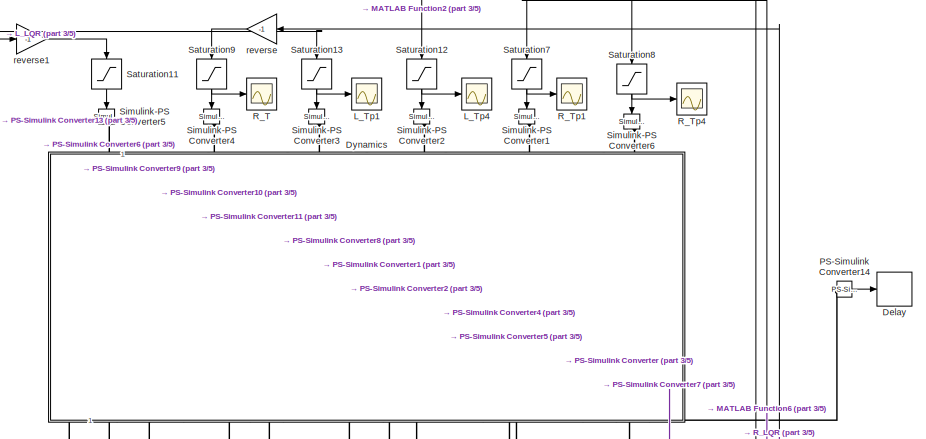
[diagram: root canvas - part 1/5, top center region]
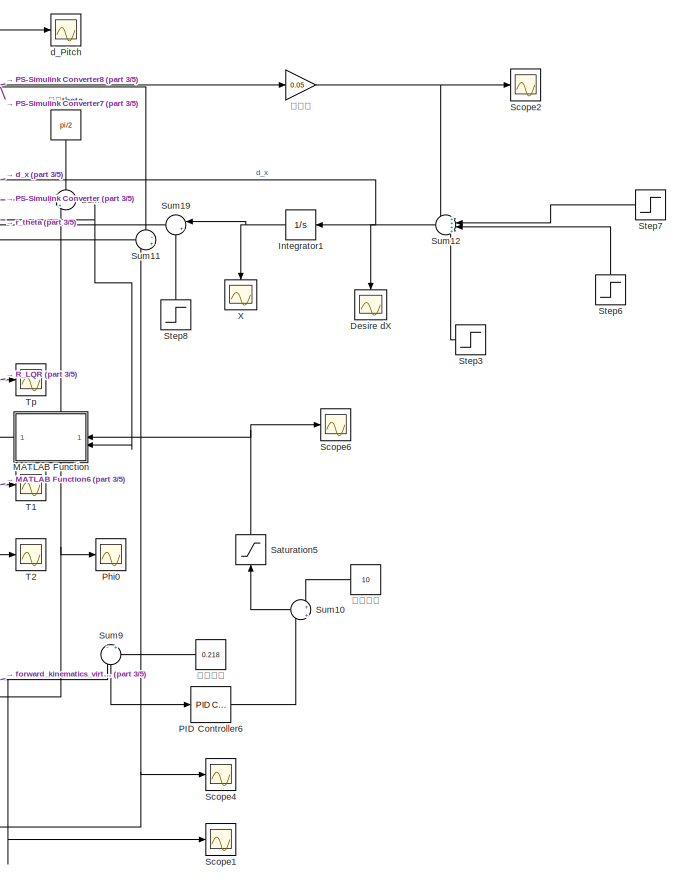
[diagram: root canvas - part 2/5, top right region]
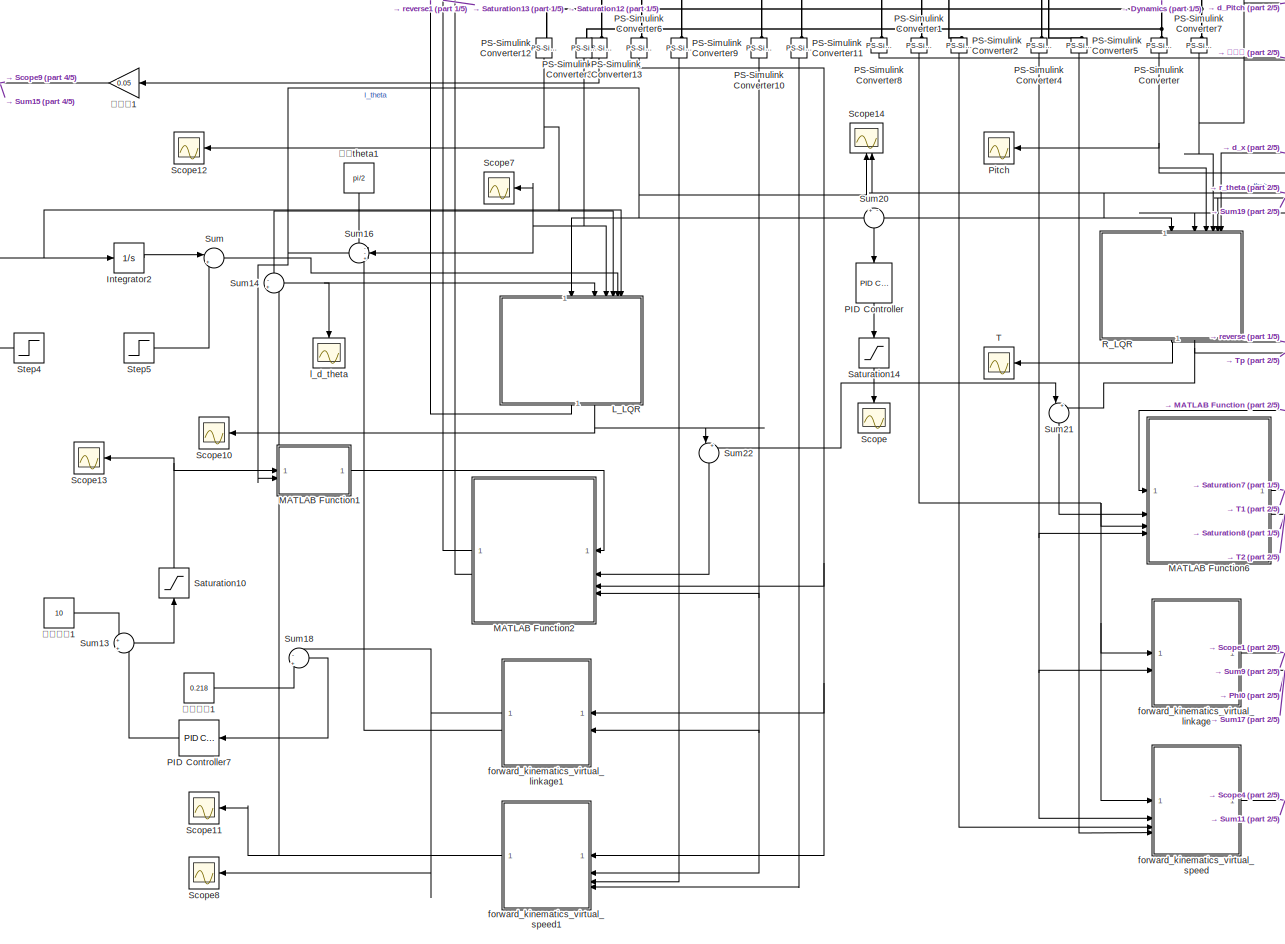
[diagram: root canvas - part 3/5, top center region]
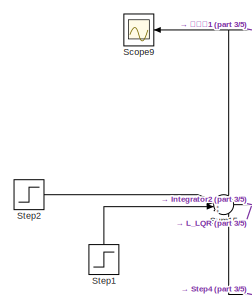
[diagram: root canvas - part 4/5, top left region]
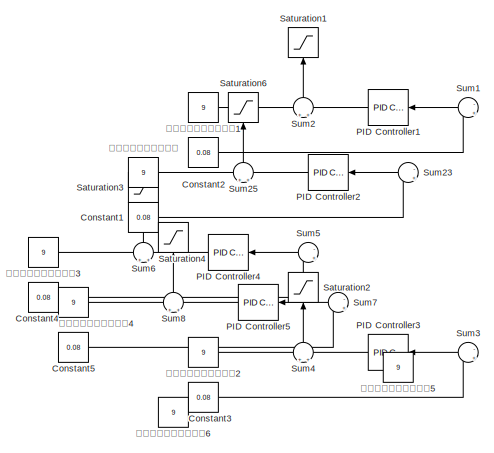
[diagram: root canvas - part 5/5, bottom right region]
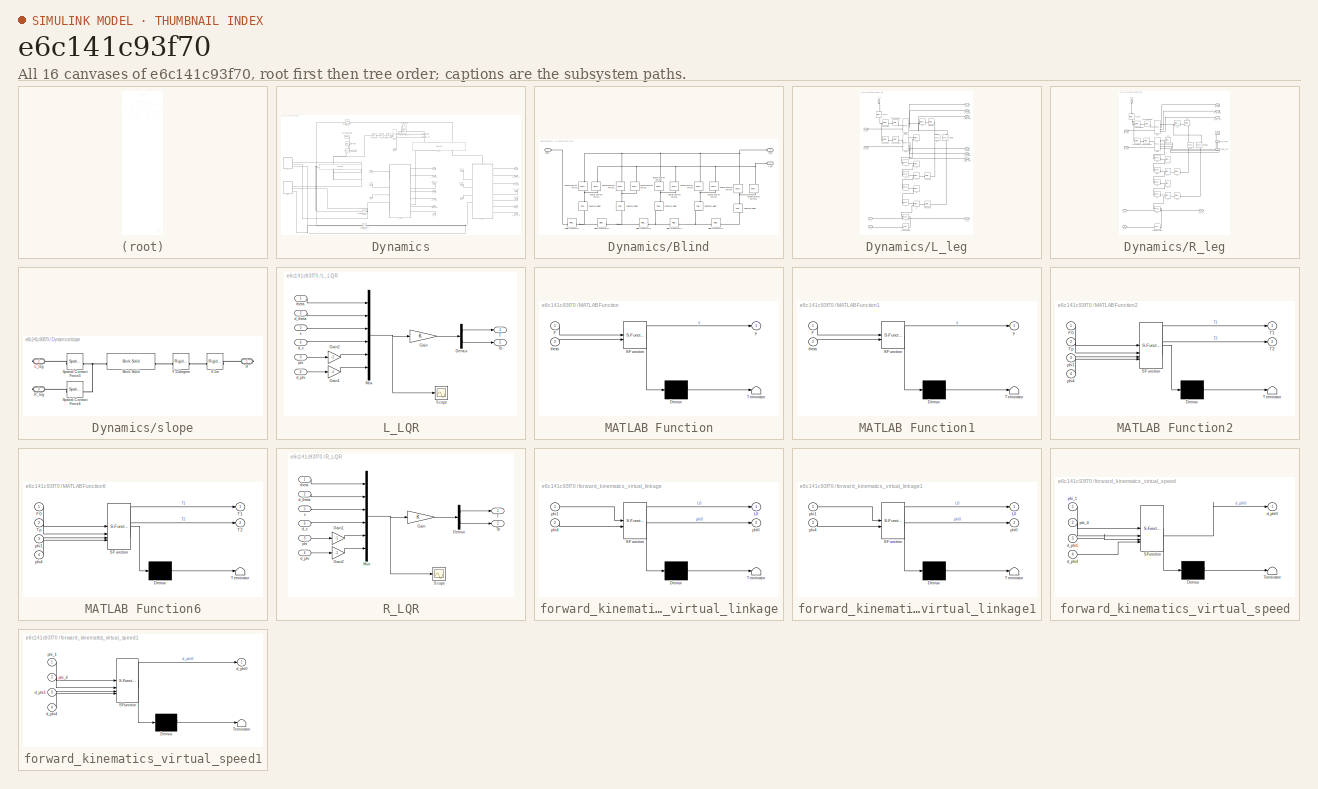
[diagram: thumbnail index - all 16 canvases of the model, root first then tree order]
MODEL slx_e6c141c93f70
KIND model
CONFIG AbsTol = auto
CONFIG EnableMultiTasking = off
CONFIG FixedStep = auto
CONFIG MaxStep = 0.01
CONFIG MinStep = auto
CONFIG RelTol = 1e-2
CONFIG SampleTimeConstraint = Unconstrained
CONFIG SolverName = VariableStepAuto
CONFIG StartTime = 0.0
CONFIG StopTime = 8
BLOCK [Constant] Constant1
  Value = 0.08
BLOCK [Constant] Constant2
  Value = 0.08
BLOCK [Constant] Constant3
  Value = 0.08
BLOCK [Constant] Constant4
  Value = 0.08
BLOCK [Constant] Constant5
  Value = 0.08
BLOCK [Delay] Delay
  DelayLength = 1
  InputPortMap = u0
BLOCK [Scope] Desire dX
  Floating = off
  NameLocation = left
  NumInputPorts = 1
  ScopeSpecificationString = Simulink.scopes.TimeScopeBlockCfg('CurrentConfiguration', extmgr.ConfigurationSet(extmgr.Configuration('Core','General UI',true),extmgr.Configuration('Core','Source UI',true),extmgr.Configuration('Sources','WiredSimulink',true,'DataLoggingVariableName','ScopeData14'),extmgr.Configuration('Visuals','Time Domain',true,'SerializedDisplays',{struct('MinYLimReal','-318.05732','MaxYLimReal','37.47952','...<+1563ch>
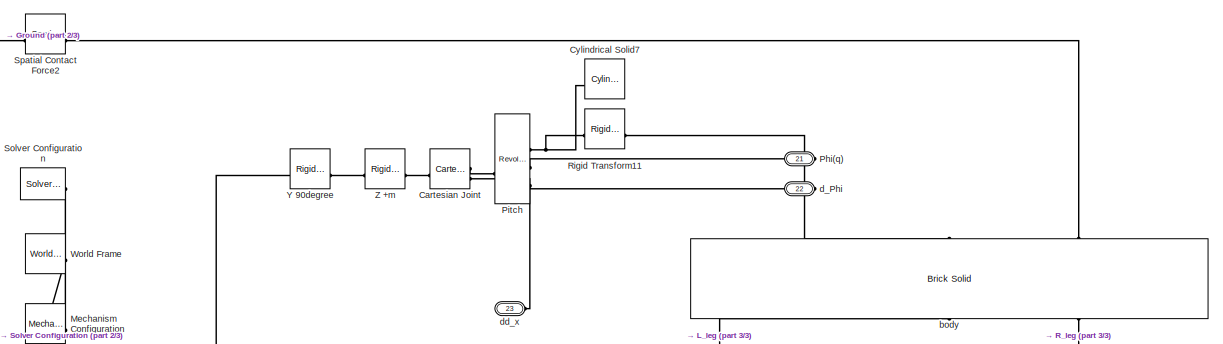
[diagram: Dynamics - part 1/3, top center region]
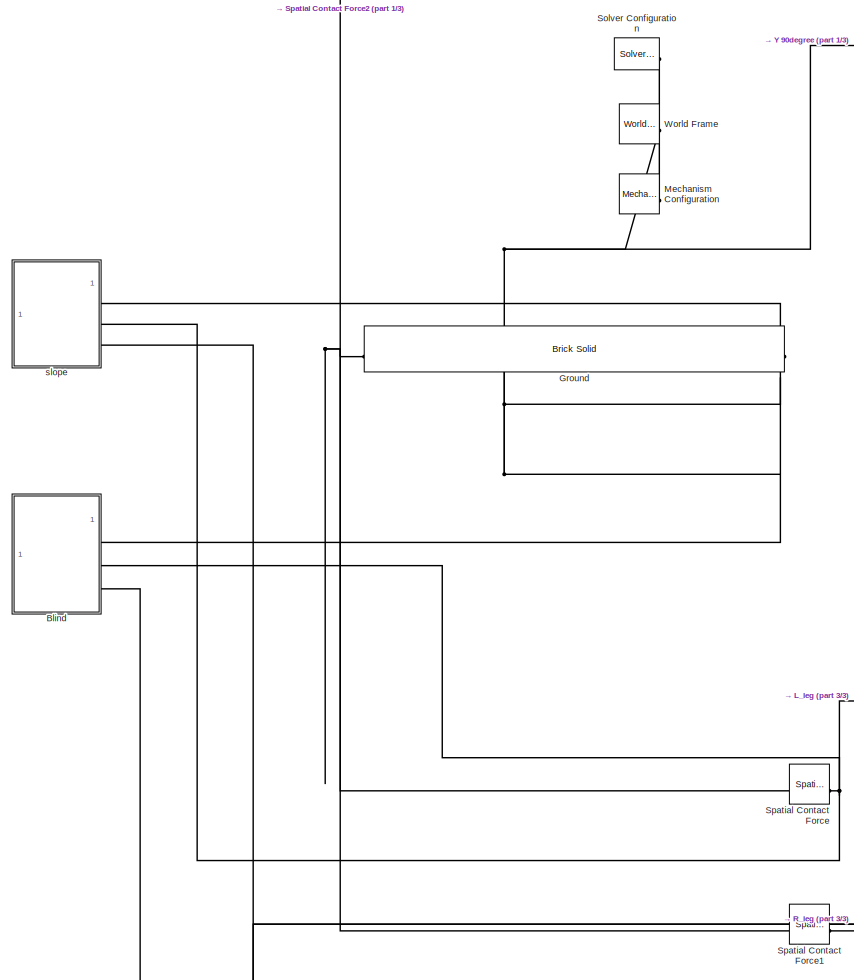
[diagram: Dynamics - part 2/3, left side, full height]
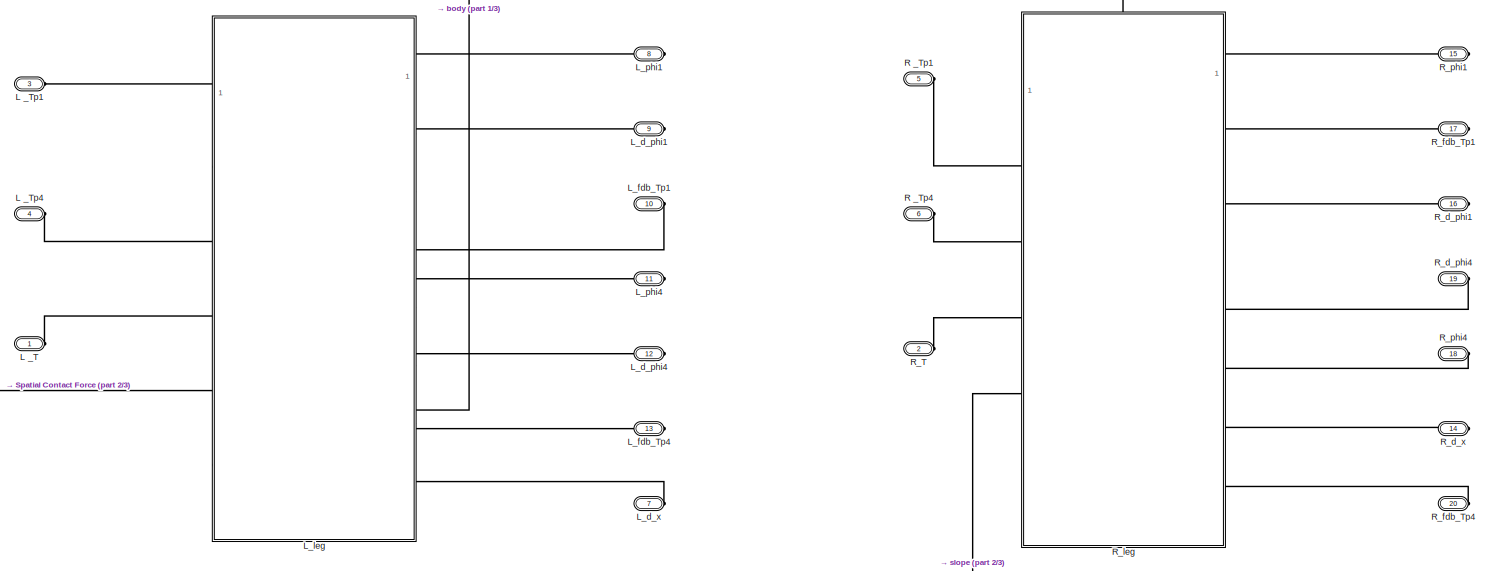
[diagram: Dynamics - part 3/3, middle right region]
BLOCK [SubSystem] Dynamics
  NameLocation = left
  PortSchema = {"entries":[{"content":{"sides":[{"content":{"connectorIds":["LConn1","LConn2","LConn3","LConn4","LConn5","LConn6"]},"type":"ConnectorPlacement.EquallySpacedRectSide","uuid":"b223eac4-e391-4bcf-aafc-24dfe8504e37"},{"content":{"connectorIds":["RConn1","RConn2","RConn3","RConn4","RConn5","RConn6","RConn7","RConn8","RConn9","RConn10","RConn11","RConn12","RConn13","RConn14","RConn15","RConn16"],"side"...<+567ch>
BLOCK [SubSystem] Dynamics/Blind
  Commented = on
  NameLocation = top
BLOCK [PMIOPort] Dynamics/Blind/Base
  Side = Left
BLOCK [Reference] Dynamics/Blind/Cylindrical Solid1  REF=sm_lib/Body Elements/Cylindrical Solid
  NameLocation = left
  SourceBlock = sm_lib/Body Elements/Cylindrical Solid
  SourceType = Cylindrical Solid
BLOCK [Reference] Dynamics/Blind/Cylindrical Solid2  REF=sm_lib/Body Elements/Cylindrical Solid
  NameLocation = left
  SourceBlock = sm_lib/Body Elements/Cylindrical Solid
  SourceType = Cylindrical Solid
BLOCK [Reference] Dynamics/Blind/Cylindrical Solid3  REF=sm_lib/Body Elements/Cylindrical Solid
  NameLocation = left
  SourceBlock = sm_lib/Body Elements/Cylindrical Solid
  SourceType = Cylindrical Solid
BLOCK [Reference] Dynamics/Blind/Cylindrical Solid4  REF=sm_lib/Body Elements/Cylindrical Solid
  NameLocation = left
  SourceBlock = sm_lib/Body Elements/Cylindrical Solid
  SourceType = Cylindrical Solid
BLOCK [Reference] Dynamics/Blind/Cylindrical Solid6  REF=sm_lib/Body Elements/Cylindrical Solid
  NameLocation = left
  SourceBlock = sm_lib/Body Elements/Cylindrical Solid
  SourceType = Cylindrical Solid
BLOCK [PMIOPort] Dynamics/Blind/L_leg
  NameLocation = top
  Port = 2
  Side = Left
BLOCK [PMIOPort] Dynamics/Blind/R_leg
  NameLocation = top
  Port = 3
  Side = Left
BLOCK [Reference] Dynamics/Blind/Rigid Transform  REF=sm_lib/Frames and
Transforms/Rigid
Transform
  SourceBlock = sm_lib/Frames and\nTransforms/Rigid\nTransform
  SourceType = Rigid\nTransform
BLOCK [Reference] Dynamics/Blind/Rigid Transform1  REF=sm_lib/Frames and
Transforms/Rigid
Transform
  SourceBlock = sm_lib/Frames and\nTransforms/Rigid\nTransform
  SourceType = Rigid\nTransform
BLOCK [Reference] Dynamics/Blind/Rigid Transform2  REF=sm_lib/Frames and
Transforms/Rigid
Transform
  SourceBlock = sm_lib/Frames and\nTransforms/Rigid\nTransform
  SourceType = Rigid\nTransform
BLOCK [Reference] Dynamics/Blind/Rigid Transform3  REF=sm_lib/Frames and
Transforms/Rigid
Transform
  SourceBlock = sm_lib/Frames and\nTransforms/Rigid\nTransform
  SourceType = Rigid\nTransform
BLOCK [Reference] Dynamics/Blind/Rigid Transform4  REF=sm_lib/Frames and
Transforms/Rigid
Transform
  SourceBlock = sm_lib/Frames and\nTransforms/Rigid\nTransform
  SourceType = Rigid\nTransform
BLOCK [Reference] Dynamics/Blind/Spatial Contact Force1  REF=sm_lib/Forces and
Torques/Spatial
Contact Force
  NameLocation = right
  SourceBlock = sm_lib/Forces and\nTorques/Spatial\nContact Force
  SourceType = Spatial\nContact Force
BLOCK [Reference] Dynamics/Blind/Spatial Contact Force10  REF=sm_lib/Forces and
Torques/Spatial
Contact Force
  NameLocation = right
  SourceBlock = sm_lib/Forces and\nTorques/Spatial\nContact Force
  SourceType = Spatial\nContact Force
BLOCK [Reference] Dynamics/Blind/Spatial Contact Force2  REF=sm_lib/Forces and
Torques/Spatial
Contact Force
  NameLocation = right
  SourceBlock = sm_lib/Forces and\nTorques/Spatial\nContact Force
  SourceType = Spatial\nContact Force
BLOCK [Reference] Dynamics/Blind/Spatial Contact Force3  REF=sm_lib/Forces and
Torques/Spatial
Contact Force
  NameLocation = right
  SourceBlock = sm_lib/Forces and\nTorques/Spatial\nContact Force
  SourceType = Spatial\nContact Force
BLOCK [Reference] Dynamics/Blind/Spatial Contact Force4  REF=sm_lib/Forces and
Torques/Spatial
Contact Force
  NameLocation = right
  SourceBlock = sm_lib/Forces and\nTorques/Spatial\nContact Force
  SourceType = Spatial\nContact Force
BLOCK [Reference] Dynamics/Blind/Spatial Contact Force5  REF=sm_lib/Forces and
Torques/Spatial
Contact Force
  NameLocation = right
  SourceBlock = sm_lib/Forces and\nTorques/Spatial\nContact Force
  SourceType = Spatial\nContact Force
BLOCK [Reference] Dynamics/Blind/Spatial Contact Force6  REF=sm_lib/Forces and
Torques/Spatial
Contact Force
  NameLocation = right
  SourceBlock = sm_lib/Forces and\nTorques/Spatial\nContact Force
  SourceType = Spatial\nContact Force
BLOCK [Reference] Dynamics/Blind/Spatial Contact Force7  REF=sm_lib/Forces and
Torques/Spatial
Contact Force
  NameLocation = right
  SourceBlock = sm_lib/Forces and\nTorques/Spatial\nContact Force
  SourceType = Spatial\nContact Force
BLOCK [Reference] Dynamics/Blind/Spatial Contact Force8  REF=sm_lib/Forces and
Torques/Spatial
Contact Force
  NameLocation = right
  SourceBlock = sm_lib/Forces and\nTorques/Spatial\nContact Force
  SourceType = Spatial\nContact Force
BLOCK [Reference] Dynamics/Blind/Spatial Contact Force9  REF=sm_lib/Forces and
Torques/Spatial
Contact Force
  NameLocation = right
  SourceBlock = sm_lib/Forces and\nTorques/Spatial\nContact Force
  SourceType = Spatial\nContact Force
BLOCK [Reference] Dynamics/Cartesian Joint  REF=sm_lib/Joints/Cartesian
Joint
  SourceBlock = sm_lib/Joints/Cartesian\nJoint
  SourceType = Cartesian\nJoint
BLOCK [Reference] Dynamics/Cylindrical Solid7  REF=sm_lib/Body Elements/Cylindrical Solid
  NameLocation = top
  SourceBlock = sm_lib/Body Elements/Cylindrical Solid
  SourceType = Cylindrical Solid
BLOCK [Reference] Dynamics/Ground  REF=sm_lib/Body Elements/Brick Solid
  SourceBlock = sm_lib/Body Elements/Brick Solid
  SourceType = Brick Solid
BLOCK [PMIOPort] Dynamics/L _T
  Side = Left
BLOCK [PMIOPort] Dynamics/L _Tp1
  Port = 3
  Side = Left
BLOCK [PMIOPort] Dynamics/L _Tp4
  Port = 4
  Side = Left
BLOCK [PMIOPort] Dynamics/L_d_phi1
  Port = 9
  Side = Right
BLOCK [PMIOPort] Dynamics/L_d_phi4
  Port = 12
  Side = Right
BLOCK [PMIOPort] Dynamics/L_d_x 
  Port = 7
  Side = Right
BLOCK [PMIOPort] Dynamics/L_fdb_Tp1
  Port = 10
  Side = Right
BLOCK [PMIOPort] Dynamics/L_fdb_Tp4
  Port = 13
  Side = Right
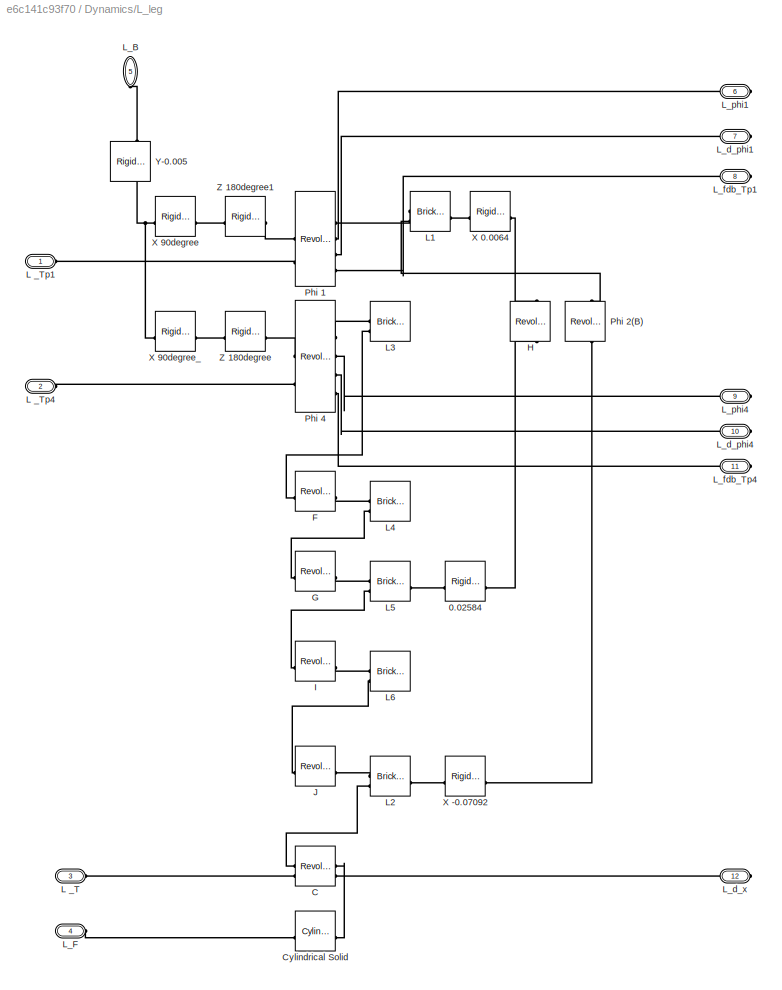
BLOCK [SubSystem] Dynamics/L_leg
  PortSchema = {"entries":[{"content":{"sides":[{"content":{"connectorIds":["LConn1","LConn2","LConn3","LConn4"]},"type":"ConnectorPlacement.EquallySpacedRectSide","uuid":"d3d8d222-f080-4482-8f2f-bdc3cf983a08"},{"content":{"connectorIds":["RConn1","RConn2","RConn3","RConn4","RConn5","RConn6","RConn7"],"side":"RIGHT"},"type":"ConnectorPlacement.EquallySpacedRectSide","uuid":"11f4bb28-285c-49fd-a8f0-337f16ece92c"}...<+334ch>
BLOCK [Reference] Dynamics/L_leg/0.02584  REF=sm_lib/Frames and
Transforms/Rigid
Transform
  SourceBlock = sm_lib/Frames and\nTransforms/Rigid\nTransform
  SourceType = Rigid\nTransform
BLOCK [Reference] Dynamics/L_leg/C  REF=sm_lib/Joints/Revolute Joint
  SourceBlock = sm_lib/Joints/Revolute Joint
  SourceType = Revolute Joint
BLOCK [Reference] Dynamics/L_leg/Cylindrical Solid  REF=sm_lib/Body Elements/Cylindrical Solid
  SourceBlock = sm_lib/Body Elements/Cylindrical Solid
  SourceType = Cylindrical Solid
BLOCK [Reference] Dynamics/L_leg/F  REF=sm_lib/Joints/Revolute Joint
  SourceBlock = sm_lib/Joints/Revolute Joint
  SourceType = Revolute Joint
BLOCK [Reference] Dynamics/L_leg/G  REF=sm_lib/Joints/Revolute Joint
  SourceBlock = sm_lib/Joints/Revolute Joint
  SourceType = Revolute Joint
BLOCK [Reference] Dynamics/L_leg/H  REF=sm_lib/Joints/Revolute Joint
  NameLocation = left
  SourceBlock = sm_lib/Joints/Revolute Joint
  SourceType = Revolute Joint
BLOCK [Reference] Dynamics/L_leg/I  REF=sm_lib/Joints/Revolute Joint
  SourceBlock = sm_lib/Joints/Revolute Joint
  SourceType = Revolute Joint
BLOCK [Reference] Dynamics/L_leg/J  REF=sm_lib/Joints/Revolute Joint
  SourceBlock = sm_lib/Joints/Revolute Joint
  SourceType = Revolute Joint
BLOCK [PMIOPort] Dynamics/L_leg/L _T
  Port = 3
  Side = Left
BLOCK [PMIOPort] Dynamics/L_leg/L _Tp1
  Side = Left
BLOCK [PMIOPort] Dynamics/L_leg/L _Tp4
  Port = 2
  Side = Left
BLOCK [Reference] Dynamics/L_leg/L1  REF=sm_lib/Body Elements/Brick Solid
  SourceBlock = sm_lib/Body Elements/Brick Solid
  SourceType = Brick Solid
BLOCK [Reference] Dynamics/L_leg/L2  REF=sm_lib/Body Elements/Brick Solid
  SourceBlock = sm_lib/Body Elements/Brick Solid
  SourceType = Brick Solid
BLOCK [Reference] Dynamics/L_leg/L3  REF=sm_lib/Body Elements/Brick Solid
  SourceBlock = sm_lib/Body Elements/Brick Solid
  SourceType = Brick Solid
BLOCK [Reference] Dynamics/L_leg/L4  REF=sm_lib/Body Elements/Brick Solid
  SourceBlock = sm_lib/Body Elements/Brick Solid
  SourceType = Brick Solid
BLOCK [Reference] Dynamics/L_leg/L5  REF=sm_lib/Body Elements/Brick Solid
  SourceBlock = sm_lib/Body Elements/Brick Solid
  SourceType = Brick Solid
BLOCK [Reference] Dynamics/L_leg/L6  REF=sm_lib/Body Elements/Brick Solid
  SourceBlock = sm_lib/Body Elements/Brick Solid
  SourceType = Brick Solid
BLOCK [PMIOPort] Dynamics/L_leg/L_B
  NameLocation = left
  Port = 5
  Side = Left
BLOCK [PMIOPort] Dynamics/L_leg/L_F
  Port = 4
  Side = Left
BLOCK [PMIOPort] Dynamics/L_leg/L_d_phi1
  Port = 7
  Side = Right
BLOCK [PMIOPort] Dynamics/L_leg/L_d_phi4
  Port = 10
  Side = Right
BLOCK [PMIOPort] Dynamics/L_leg/L_d_x 
  Port = 12
  Side = Right
BLOCK [PMIOPort] Dynamics/L_leg/L_fdb_Tp1
  Port = 8
  Side = Right
BLOCK [PMIOPort] Dynamics/L_leg/L_fdb_Tp4
  Port = 11
  Side = Right
BLOCK [PMIOPort] Dynamics/L_leg/L_phi1
  Port = 6
  Side = Right
BLOCK [PMIOPort] Dynamics/L_leg/L_phi4
  Port = 9
  Side = Right
BLOCK [Reference] Dynamics/L_leg/Phi 1  REF=sm_lib/Joints/Revolute Joint
  SourceBlock = sm_lib/Joints/Revolute Joint
  SourceType = Revolute Joint
BLOCK [Reference] Dynamics/L_leg/Phi 2(B)  REF=sm_lib/Joints/Revolute Joint
  NameLocation = right
  SourceBlock = sm_lib/Joints/Revolute Joint
  SourceType = Revolute Joint
BLOCK [Reference] Dynamics/L_leg/Phi 4  REF=sm_lib/Joints/Revolute Joint
  SourceBlock = sm_lib/Joints/Revolute Joint
  SourceType = Revolute Joint
BLOCK [Reference] Dynamics/L_leg/X -0.07092  REF=sm_lib/Frames and
Transforms/Rigid
Transform
  SourceBlock = sm_lib/Frames and\nTransforms/Rigid\nTransform
  SourceType = Rigid\nTransform
BLOCK [Reference] Dynamics/L_leg/X 0.0064  REF=sm_lib/Frames and
Transforms/Rigid
Transform
  SourceBlock = sm_lib/Frames and\nTransforms/Rigid\nTransform
  SourceType = Rigid\nTransform
BLOCK [Reference] Dynamics/L_leg/X 90degree  REF=sm_lib/Frames and
Transforms/Rigid
Transform
  SourceBlock = sm_lib/Frames and\nTransforms/Rigid\nTransform
  SourceType = Rigid\nTransform
BLOCK [Reference] Dynamics/L_leg/X 90degree_  REF=sm_lib/Frames and
Transforms/Rigid
Transform
  SourceBlock = sm_lib/Frames and\nTransforms/Rigid\nTransform
  SourceType = Rigid\nTransform
BLOCK [Reference] Dynamics/L_leg/Y-0.005  REF=sm_lib/Frames and
Transforms/Rigid
Transform
  NameLocation = left
  SourceBlock = sm_lib/Frames and\nTransforms/Rigid\nTransform
  SourceType = Rigid\nTransform
BLOCK [Reference] Dynamics/L_leg/Z 180degree  REF=sm_lib/Frames and
Transforms/Rigid
Transform
  SourceBlock = sm_lib/Frames and\nTransforms/Rigid\nTransform
  SourceType = Rigid\nTransform
BLOCK [Reference] Dynamics/L_leg/Z 180degree1  REF=sm_lib/Frames and
Transforms/Rigid
Transform
  SourceBlock = sm_lib/Frames and\nTransforms/Rigid\nTransform
  SourceType = Rigid\nTransform
BLOCK [PMIOPort] Dynamics/L_phi1
  Port = 8
  Side = Right
BLOCK [PMIOPort] Dynamics/L_phi4
  Port = 11
  Side = Right
BLOCK [Reference] Dynamics/Mechanism Configuration  REF=sm_lib/Utilities/Mechanism
Configuration
  SourceBlock = sm_lib/Utilities/Mechanism\nConfiguration
  SourceType = Mechanism\nConfiguration
BLOCK [PMIOPort] Dynamics/Phi(q)
  Port = 21
  Side = Right
BLOCK [Reference] Dynamics/Pitch  REF=sm_lib/Joints/Revolute Joint
  SourceBlock = sm_lib/Joints/Revolute Joint
  SourceType = Revolute Joint
BLOCK [PMIOPort] Dynamics/R _Tp1
  Port = 5
  Side = Left
BLOCK [PMIOPort] Dynamics/R _Tp4
  Port = 6
  Side = Left
BLOCK [PMIOPort] Dynamics/R_T
  Port = 2
  Side = Left
BLOCK [PMIOPort] Dynamics/R_d_phi1
  Port = 16
  Side = Right
BLOCK [PMIOPort] Dynamics/R_d_phi4
  Port = 19
  Side = Right
BLOCK [PMIOPort] Dynamics/R_d_x
  Port = 14
  Side = Right
BLOCK [PMIOPort] Dynamics/R_fdb_Tp1
  Port = 17
  Side = Right
BLOCK [PMIOPort] Dynamics/R_fdb_Tp4
  Port = 20
  Side = Right
BLOCK [SubSystem] Dynamics/R_leg
  PortSchema = {"entries":[{"content":{"sides":[{"content":{"connectorIds":["LConn1","LConn2","LConn3","LConn4"]},"type":"ConnectorPlacement.EquallySpacedRectSide","uuid":"ad32bfc9-5696-400c-9526-c9a5650991b1"},{"content":{"connectorIds":["RConn1","RConn2","RConn3","RConn4","RConn5","RConn6","RConn7"],"side":"RIGHT"},"type":"ConnectorPlacement.EquallySpacedRectSide","uuid":"1146c3ee-e69d-4810-988d-3933982aa615"}...<+334ch>
BLOCK [Reference] Dynamics/R_leg/-Y 0.005  REF=sm_lib/Frames and
Transforms/Rigid
Transform
  NameLocation = left
  SourceBlock = sm_lib/Frames and\nTransforms/Rigid\nTransform
  SourceType = Rigid\nTransform
BLOCK [Reference] Dynamics/R_leg/0.1  REF=sm_lib/Frames and
Transforms/Rigid
Transform
  SourceBlock = sm_lib/Frames and\nTransforms/Rigid\nTransform
  SourceType = Rigid\nTransform
BLOCK [Reference] Dynamics/R_leg/C1  REF=sm_lib/Joints/Revolute Joint
  SourceBlock = sm_lib/Joints/Revolute Joint
  SourceType = Revolute Joint
BLOCK [Reference] Dynamics/R_leg/Cylindrical Solid2  REF=sm_lib/Body Elements/Cylindrical Solid
  SourceBlock = sm_lib/Body Elements/Cylindrical Solid
  SourceType = Cylindrical Solid
BLOCK [Reference] Dynamics/R_leg/F1  REF=sm_lib/Joints/Revolute Joint
  SourceBlock = sm_lib/Joints/Revolute Joint
  SourceType = Revolute Joint
BLOCK [Reference] Dynamics/R_leg/G1  REF=sm_lib/Joints/Revolute Joint
  SourceBlock = sm_lib/Joints/Revolute Joint
  SourceType = Revolute Joint
BLOCK [Reference] Dynamics/R_leg/H1  REF=sm_lib/Joints/Revolute Joint
  NameLocation = left
  SourceBlock = sm_lib/Joints/Revolute Joint
  SourceType = Revolute Joint
BLOCK [Reference] Dynamics/R_leg/I1  REF=sm_lib/Joints/Revolute Joint
  SourceBlock = sm_lib/Joints/Revolute Joint
  SourceType = Revolute Joint
BLOCK [Reference] Dynamics/R_leg/J1  REF=sm_lib/Joints/Revolute Joint
  SourceBlock = sm_lib/Joints/Revolute Joint
  SourceType = Revolute Joint
BLOCK [Reference] Dynamics/R_leg/L13  REF=sm_lib/Body Elements/Brick Solid
  SourceBlock = sm_lib/Body Elements/Brick Solid
  SourceType = Brick Solid
BLOCK [Reference] Dynamics/R_leg/L14  REF=sm_lib/Body Elements/Brick Solid
  SourceBlock = sm_lib/Body Elements/Brick Solid
  SourceType = Brick Solid
BLOCK [Reference] Dynamics/R_leg/L15  REF=sm_lib/Body Elements/Brick Solid
  SourceBlock = sm_lib/Body Elements/Brick Solid
  SourceType = Brick Solid
BLOCK [Reference] Dynamics/R_leg/L16  REF=sm_lib/Body Elements/Brick Solid
  SourceBlock = sm_lib/Body Elements/Brick Solid
  SourceType = Brick Solid
BLOCK [Reference] Dynamics/R_leg/L17  REF=sm_lib/Body Elements/Brick Solid
  SourceBlock = sm_lib/Body Elements/Brick Solid
  SourceType = Brick Solid
BLOCK [Reference] Dynamics/R_leg/L18  REF=sm_lib/Body Elements/Brick Solid
  SourceBlock = sm_lib/Body Elements/Brick Solid
  SourceType = Brick Solid
BLOCK [Reference] Dynamics/R_leg/Phi 2  REF=sm_lib/Joints/Revolute Joint
  SourceBlock = sm_lib/Joints/Revolute Joint
  SourceType = Revolute Joint
BLOCK [Reference] Dynamics/R_leg/Phi 2(B)1  REF=sm_lib/Joints/Revolute Joint
  NameLocation = right
  SourceBlock = sm_lib/Joints/Revolute Joint
  SourceType = Revolute Joint
BLOCK [Reference] Dynamics/R_leg/Phi 3  REF=sm_lib/Joints/Revolute Joint
  SourceBlock = sm_lib/Joints/Revolute Joint
  SourceType = Revolute Joint
BLOCK [PMIOPort] Dynamics/R_leg/R _Tp1
  Side = Left
BLOCK [PMIOPort] Dynamics/R_leg/R _Tp4
  Port = 2
  Side = Left
BLOCK [PMIOPort] Dynamics/R_leg/R_B
  NameLocation = left
  Port = 5
  Side = Left
BLOCK [PMIOPort] Dynamics/R_leg/R_F
  Port = 4
  Side = Left
BLOCK [PMIOPort] Dynamics/R_leg/R_T
  Port = 3
  Side = Left
BLOCK [PMIOPort] Dynamics/R_leg/R_d_phi1
  Port = 8
  Side = Right
BLOCK [PMIOPort] Dynamics/R_leg/R_d_phi4
  Port = 9
  Side = Right
BLOCK [PMIOPort] Dynamics/R_leg/R_d_x
  Port = 11
  Side = Right
BLOCK [PMIOPort] Dynamics/R_leg/R_fdb_Tp1
  Port = 7
  Side = Right
BLOCK [PMIOPort] Dynamics/R_leg/R_fdb_Tp4
  Port = 12
  Side = Right
BLOCK [PMIOPort] Dynamics/R_leg/R_phi1
  Port = 6
  Side = Right
BLOCK [PMIOPort] Dynamics/R_leg/R_phi4
  Port = 10
  Side = Right
BLOCK [Reference] Dynamics/R_leg/X -0.3  REF=sm_lib/Frames and
Transforms/Rigid
Transform
  SourceBlock = sm_lib/Frames and\nTransforms/Rigid\nTransform
  SourceType = Rigid\nTransform
BLOCK [Reference] Dynamics/R_leg/X 0.2  REF=sm_lib/Frames and
Transforms/Rigid
Transform
  SourceBlock = sm_lib/Frames and\nTransforms/Rigid\nTransform
  SourceType = Rigid\nTransform
BLOCK [Reference] Dynamics/R_leg/X 90degree2  REF=sm_lib/Frames and
Transforms/Rigid
Transform
  SourceBlock = sm_lib/Frames and\nTransforms/Rigid\nTransform
  SourceType = Rigid\nTransform
BLOCK [Reference] Dynamics/R_leg/X 90degree_2  REF=sm_lib/Frames and
Transforms/Rigid
Transform
  SourceBlock = sm_lib/Frames and\nTransforms/Rigid\nTransform
  SourceType = Rigid\nTransform
BLOCK [Reference] Dynamics/R_leg/Z 180degree4  REF=sm_lib/Frames and
Transforms/Rigid
Transform
  SourceBlock = sm_lib/Frames and\nTransforms/Rigid\nTransform
  SourceType = Rigid\nTransform
BLOCK [Reference] Dynamics/R_leg/Z 180degree5  REF=sm_lib/Frames and
Transforms/Rigid
Transform
  SourceBlock = sm_lib/Frames and\nTransforms/Rigid\nTransform
  SourceType = Rigid\nTransform
BLOCK [PMIOPort] Dynamics/R_phi1
  Port = 15
  Side = Right
BLOCK [PMIOPort] Dynamics/R_phi4
  Port = 18
  Side = Right
BLOCK [Reference] Dynamics/Rigid Transform11  REF=sm_lib/Frames and
Transforms/Rigid
Transform
  NameLocation = top
  SourceBlock = sm_lib/Frames and\nTransforms/Rigid\nTransform
  SourceType = Rigid\nTransform
BLOCK [Reference] Dynamics/Solver Configuration  REF=nesl_utility/Solver
Configuration
  SourceBlock = nesl_utility/Solver\nConfiguration
  SourceType = Solver\nConfiguration
BLOCK [Reference] Dynamics/Spatial Contact Force  REF=sm_lib/Forces and
Torques/Spatial
Contact Force
  NameLocation = top
  SourceBlock = sm_lib/Forces and\nTorques/Spatial\nContact Force
  SourceType = Spatial\nContact Force
BLOCK [Reference] Dynamics/Spatial Contact Force1  REF=sm_lib/Forces and
Torques/Spatial
Contact Force
  NameLocation = top
  SourceBlock = sm_lib/Forces and\nTorques/Spatial\nContact Force
  SourceType = Spatial\nContact Force
BLOCK [Reference] Dynamics/Spatial Contact Force2  REF=sm_lib/Forces and
Torques/Spatial
Contact Force
  NameLocation = top
  SourceBlock = sm_lib/Forces and\nTorques/Spatial\nContact Force
  SourceType = Spatial\nContact Force
BLOCK [Reference] Dynamics/World Frame  REF=sm_lib/Frames and
Transforms/World Frame
  SourceBlock = sm_lib/Frames and\nTransforms/World Frame
  SourceType = World Frame
BLOCK [Reference] Dynamics/Y 90degree  REF=sm_lib/Frames and
Transforms/Rigid
Transform
  SourceBlock = sm_lib/Frames and\nTransforms/Rigid\nTransform
  SourceType = Rigid\nTransform
BLOCK [Reference] Dynamics/Z +m  REF=sm_lib/Frames and
Transforms/Rigid
Transform
  SourceBlock = sm_lib/Frames and\nTransforms/Rigid\nTransform
  SourceType = Rigid\nTransform
BLOCK [Reference] Dynamics/body  REF=sm_lib/Body Elements/Brick Solid
  NameLocation = right
  SourceBlock = sm_lib/Body Elements/Brick Solid
  SourceType = Brick Solid
BLOCK [PMIOPort] Dynamics/d_Phi
  Port = 22
  Side = Right
BLOCK [PMIOPort] Dynamics/dd_x
  Port = 23
  Side = Right
BLOCK [SubSystem] Dynamics/slope
BLOCK [Reference] Dynamics/slope/Brick Solid  REF=sm_lib/Body Elements/Brick Solid
  SourceBlock = sm_lib/Body Elements/Brick Solid
  SourceType = Brick Solid
BLOCK [PMIOPort] Dynamics/slope/L_leg
  NameLocation = top
  Port = 2
  Side = Right
BLOCK [PMIOPort] Dynamics/slope/R
  Side = Right
BLOCK [PMIOPort] Dynamics/slope/R_leg
  NameLocation = top
  Port = 3
  Side = Right
BLOCK [Reference] Dynamics/slope/Spatial Contact Force3  REF=sm_lib/Forces and
Torques/Spatial
Contact Force
  NameLocation = top
  SourceBlock = sm_lib/Forces and\nTorques/Spatial\nContact Force
  SourceType = Spatial\nContact Force
BLOCK [Reference] Dynamics/slope/Spatial Contact Force4  REF=sm_lib/Forces and
Torques/Spatial
Contact Force
  NameLocation = top
  SourceBlock = sm_lib/Forces and\nTorques/Spatial\nContact Force
  SourceType = Spatial\nContact Force
BLOCK [Reference] Dynamics/slope/X 1m  REF=sm_lib/Frames and
Transforms/Rigid
Transform
  SourceBlock = sm_lib/Frames and\nTransforms/Rigid\nTransform
  SourceType = Rigid\nTransform
BLOCK [Reference] Dynamics/slope/Y 15degree  REF=sm_lib/Frames and
Transforms/Rigid
Transform
  SourceBlock = sm_lib/Frames and\nTransforms/Rigid\nTransform
  SourceType = Rigid\nTransform
BLOCK [Integrator] Integrator1
BLOCK [Integrator] Integrator2
BLOCK [SubSystem] L_LQR
  NameLocation = right
BLOCK [Demux] L_LQR/Demux
  Outputs = 2
BLOCK [Gain] L_LQR/Gain
  Gain = K
  Multiplication = Matrix(K*u) (u vector)
BLOCK [Gain] L_LQR/Gain1
  Gain = -1
BLOCK [Gain] L_LQR/Gain2
  Gain = -1
BLOCK [Mux] L_LQR/Mux
  DisplayOption = bar
  Inputs = 6
BLOCK [Scope] L_LQR/Scope
  Floating = off
  NumInputPorts = 1
  ScopeSpecificationString = Simulink.scopes.TimeScopeBlockCfg('CurrentConfiguration', extmgr.ConfigurationSet(extmgr.Configuration('Core','General UI',true),extmgr.Configuration('Core','Source UI',true),extmgr.Configuration('Sources','WiredSimulink',true,'DataLoggingVariableName','ScopeData4'),extmgr.Configuration('Visuals','Time Domain',true,'SerializedDisplays',{struct('MinYLimReal','-1.00000','MaxYLimReal','1.00000','YLab...<+1559ch>
BLOCK [Outport] L_LQR/T
BLOCK [Outport] L_LQR/Tp
  Port = 2
BLOCK [Inport] L_LQR/d_phi
  Port = 4
BLOCK [Inport] L_LQR/d_theta
  Port = 2
BLOCK [Inport] L_LQR/d_x
  Port = 6
BLOCK [Inport] L_LQR/phi
  Port = 3
BLOCK [Inport] L_LQR/theta
BLOCK [Inport] L_LQR/x
  Port = 5
BLOCK [Scope] L_Tp1
  Floating = off
  NumInputPorts = 1
  ScopeSpecificationString = Simulink.scopes.TimeScopeBlockCfg('CurrentConfiguration', extmgr.ConfigurationSet(extmgr.Configuration('Core','General UI',true),extmgr.Configuration('Core','Source UI',true),extmgr.Configuration('Sources','WiredSimulink',true,'DataLoggingVariableName','ScopeData13'),extmgr.Configuration('Visuals','Time Domain',true,'SerializedDisplays',{struct('MinYLimReal','-150.54178','MaxYLimReal','22.98507','...<+1572ch>
BLOCK [Scope] L_Tp4
  Floating = off
  NumInputPorts = 1
  ScopeSpecificationString = Simulink.scopes.TimeScopeBlockCfg('CurrentConfiguration', extmgr.ConfigurationSet(extmgr.Configuration('Core','General UI',true),extmgr.Configuration('Core','Source UI',true),extmgr.Configuration('Sources','WiredSimulink',true,'DataLoggingVariableName','ScopeData12'),extmgr.Configuration('Visuals','Time Domain',true,'SerializedDisplays',{struct('MinYLimReal','-2.28104','MaxYLimReal','14.94176','YL...<+1564ch>
BLOCK [SubSystem] MATLAB Function
  ErrorFcn = Stateflow.Translate.translate
  NameLocation = top
  PermitHierarchicalResolution = ExplicitOnly
  SFBlockType = MATLAB Function
  TreatAsAtomicUnit = on
BLOCK [Demux] MATLAB Function/ Demux 
  Outputs = 1
BLOCK [S-Function] MATLAB Function/ SFunction 
  EnableBusSupport = on
  FunctionName = sf_sfun
  PortCounts = [2 2]
  SFcnIsStateOwnerBlock = off
  SFunctionDeploymentMode = off
  Tag = Stateflow S-Function 2
BLOCK [Terminator] MATLAB Function/ Terminator 
BLOCK [Inport] MATLAB Function/F
BLOCK [Inport] MATLAB Function/theta
  Port = 2
BLOCK [Outport] MATLAB Function/y
BLOCK [SubSystem] MATLAB Function1
  ErrorFcn = Stateflow.Translate.translate
  PermitHierarchicalResolution = ExplicitOnly
  SFBlockType = MATLAB Function
  TreatAsAtomicUnit = on
BLOCK [Demux] MATLAB Function1/ Demux 
  Outputs = 1
BLOCK [S-Function] MATLAB Function1/ SFunction 
  EnableBusSupport = on
  FunctionName = sf_sfun
  PortCounts = [2 2]
  SFcnIsStateOwnerBlock = off
  SFunctionDeploymentMode = off
  Tag = Stateflow S-Function 3
BLOCK [Terminator] MATLAB Function1/ Terminator 
BLOCK [Inport] MATLAB Function1/F
BLOCK [Inport] MATLAB Function1/theta
  Port = 2
BLOCK [Outport] MATLAB Function1/y
BLOCK [SubSystem] MATLAB Function2
  ErrorFcn = Stateflow.Translate.translate
  NameLocation = top
  PermitHierarchicalResolution = ExplicitOnly
  SFBlockType = MATLAB Function
  TreatAsAtomicUnit = on
BLOCK [Demux] MATLAB Function2/ Demux 
  Outputs = 1
BLOCK [S-Function] MATLAB Function2/ SFunction 
  EnableBusSupport = on
  FunctionName = sf_sfun
  PortCounts = [4 3]
  SFcnIsStateOwnerBlock = off
  SFunctionDeploymentMode = off
  Tag = Stateflow S-Function 4
BLOCK [Terminator] MATLAB Function2/ Terminator 
BLOCK [Inport] MATLAB Function2/F0
BLOCK [Outport] MATLAB Function2/T1
BLOCK [Outport] MATLAB Function2/T2
  Port = 2
BLOCK [Inport] MATLAB Function2/Tp
  Port = 2
BLOCK [Inport] MATLAB Function2/phi1
  Port = 3
BLOCK [Inport] MATLAB Function2/phi4
  Port = 4
BLOCK [SubSystem] MATLAB Function6
  ErrorFcn = Stateflow.Translate.translate
  NameLocation = top
  PermitHierarchicalResolution = ExplicitOnly
  SFBlockType = MATLAB Function
  TreatAsAtomicUnit = on
BLOCK [Demux] MATLAB Function6/ Demux 
  Outputs = 1
BLOCK [S-Function] MATLAB Function6/ SFunction 
  EnableBusSupport = on
  FunctionName = sf_sfun
  PortCounts = [4 3]
  SFcnIsStateOwnerBlock = off
  SFunctionDeploymentMode = off
  Tag = Stateflow S-Function 9
BLOCK [Terminator] MATLAB Function6/ Terminator 
BLOCK [Inport] MATLAB Function6/F0
BLOCK [Outport] MATLAB Function6/T1
BLOCK [Outport] MATLAB Function6/T2
  Port = 2
BLOCK [Inport] MATLAB Function6/Tp
  Port = 2
BLOCK [Inport] MATLAB Function6/phi1
  Port = 3
BLOCK [Inport] MATLAB Function6/phi4
  Port = 4
BLOCK [Reference] PID Controller  REF=slpidlib/PID Controller
  LibrarySourceBlock = simulink/Continuous/PID Controller
  NameLocation = left
  SourceBlock = slpidlib/PID Controller
  SourceType = PID 1dof
BLOCK [Reference] PID Controller1  REF=slpidlib/PID Controller
  NameLocation = top
  SourceBlock = slpidlib/PID Controller
  SourceType = PID 1dof
BLOCK [Reference] PID Controller2  REF=slpidlib/PID Controller
  NameLocation = top
  SourceBlock = slpidlib/PID Controller
  SourceType = PID 1dof
BLOCK [Reference] PID Controller3  REF=slpidlib/PID Controller
  NameLocation = top
  SourceBlock = slpidlib/PID Controller
  SourceType = PID 1dof
BLOCK [Reference] PID Controller4  REF=slpidlib/PID Controller
  NameLocation = top
  SourceBlock = slpidlib/PID Controller
  SourceType = PID 1dof
BLOCK [Reference] PID Controller5  REF=slpidlib/PID Controller
  NameLocation = top
  SourceBlock = slpidlib/PID Controller
  SourceType = PID 1dof
BLOCK [Reference] PID Controller6  REF=slpidlib/PID Controller
  NameLocation = top
  SourceBlock = slpidlib/PID Controller
  SourceType = PID 1dof
BLOCK [Reference] PID Controller7  REF=slpidlib/PID Controller
  NameLocation = top
  SourceBlock = slpidlib/PID Controller
  SourceType = PID 1dof
BLOCK [Reference] PS-Simulink Converter  REF=nesl_utility/PS-Simulink
Converter
  NameLocation = left
  SourceBlock = nesl_utility/PS-Simulink\nConverter
  SourceType = PS-Simulink\nConverter
BLOCK [Reference] PS-Simulink Converter1  REF=nesl_utility/PS-Simulink
Converter
  NameLocation = left
  SourceBlock = nesl_utility/PS-Simulink\nConverter
  SourceType = PS-Simulink\nConverter
BLOCK [Reference] PS-Simulink Converter10  REF=nesl_utility/PS-Simulink
Converter
  NameLocation = top
  SourceBlock = nesl_utility/PS-Simulink\nConverter
  SourceType = PS-Simulink\nConverter
BLOCK [Reference] PS-Simulink Converter11  REF=nesl_utility/PS-Simulink
Converter
  NameLocation = top
  SourceBlock = nesl_utility/PS-Simulink\nConverter
  SourceType = PS-Simulink\nConverter
BLOCK [Reference] PS-Simulink Converter12  REF=nesl_utility/PS-Simulink
Converter
  NameLocation = top
  SourceBlock = nesl_utility/PS-Simulink\nConverter
  SourceType = PS-Simulink\nConverter
BLOCK [Reference] PS-Simulink Converter13  REF=nesl_utility/PS-Simulink
Converter
  NameLocation = top
  SourceBlock = nesl_utility/PS-Simulink\nConverter
  SourceType = PS-Simulink\nConverter
BLOCK [Reference] PS-Simulink Converter14  REF=nesl_utility/PS-Simulink
Converter
  SourceBlock = nesl_utility/PS-Simulink\nConverter
  SourceType = PS-Simulink\nConverter
BLOCK [Reference] PS-Simulink Converter2  REF=nesl_utility/PS-Simulink
Converter
  NameLocation = left
  SourceBlock = nesl_utility/PS-Simulink\nConverter
  SourceType = PS-Simulink\nConverter
BLOCK [Reference] PS-Simulink Converter3  REF=nesl_utility/PS-Simulink
Converter
  NameLocation = top
  SourceBlock = nesl_utility/PS-Simulink\nConverter
  SourceType = PS-Simulink\nConverter
BLOCK [Reference] PS-Simulink Converter4  REF=nesl_utility/PS-Simulink
Converter
  NameLocation = left
  SourceBlock = nesl_utility/PS-Simulink\nConverter
  SourceType = PS-Simulink\nConverter
BLOCK [Reference] PS-Simulink Converter5  REF=nesl_utility/PS-Simulink
Converter
  NameLocation = left
  SourceBlock = nesl_utility/PS-Simulink\nConverter
  SourceType = PS-Simulink\nConverter
BLOCK [Reference] PS-Simulink Converter6  REF=nesl_utility/PS-Simulink
Converter
  NameLocation = top
  SourceBlock = nesl_utility/PS-Simulink\nConverter
  SourceType = PS-Simulink\nConverter
BLOCK [Reference] PS-Simulink Converter7  REF=nesl_utility/PS-Simulink
Converter
  NameLocation = left
  SourceBlock = nesl_utility/PS-Simulink\nConverter
  SourceType = PS-Simulink\nConverter
BLOCK [Reference] PS-Simulink Converter8  REF=nesl_utility/PS-Simulink
Converter
  NameLocation = left
  SourceBlock = nesl_utility/PS-Simulink\nConverter
  SourceType = PS-Simulink\nConverter
BLOCK [Reference] PS-Simulink Converter9  REF=nesl_utility/PS-Simulink
Converter
  NameLocation = top
  SourceBlock = nesl_utility/PS-Simulink\nConverter
  SourceType = PS-Simulink\nConverter
BLOCK [Scope] Phi0
  Floating = off
  NumInputPorts = 1
  ScopeSpecificationString = Simulink.scopes.TimeScopeBlockCfg('CurrentConfiguration', extmgr.ConfigurationSet(extmgr.Configuration('Core','General UI',true),extmgr.Configuration('Core','Source UI',true),extmgr.Configuration('Sources','WiredSimulink',true,'DataLoggingVariableName','ScopeData9'),extmgr.Configuration('Visuals','Time Domain',true,'SerializedDisplays',{struct('MinYLimReal','0.5708','MaxYLimReal','2.5708','YLabelR...<+1551ch>
BLOCK [Scope] Pitch
  Floating = off
  NameLocation = top
  NumInputPorts = 1
  ScopeSpecificationString = Simulink.scopes.TimeScopeBlockCfg('CurrentConfiguration', extmgr.ConfigurationSet(extmgr.Configuration('Core','General UI',true),extmgr.Configuration('Core','Source UI',true),extmgr.Configuration('Sources','WiredSimulink',true),extmgr.Configuration('Visuals','Time Domain',true,'SerializedDisplays',{struct('MinYLimReal','-0.02177','MaxYLimReal','0.14786','YLabelReal','','MinYLimMag','0.00000','MaxY...<+1516ch>
BLOCK [SubSystem] R_LQR
  NameLocation = right
BLOCK [Demux] R_LQR/Demux
  Outputs = 2
BLOCK [Gain] R_LQR/Gain
  Gain = K
  Multiplication = Matrix(K*u) (u vector)
BLOCK [Gain] R_LQR/Gain1
  Gain = -1
BLOCK [Gain] R_LQR/Gain2
  Gain = -1
BLOCK [Mux] R_LQR/Mux
  DisplayOption = bar
  Inputs = 6
BLOCK [Scope] R_LQR/Scope
  Floating = off
  NumInputPorts = 1
  ScopeSpecificationString = Simulink.scopes.TimeScopeBlockCfg('CurrentConfiguration', extmgr.ConfigurationSet(extmgr.Configuration('Core','General UI',true),extmgr.Configuration('Core','Source UI',true),extmgr.Configuration('Sources','WiredSimulink',true,'DataLoggingVariableName','ScopeData4'),extmgr.Configuration('Visuals','Time Domain',true,'SerializedDisplays',{struct('MinYLimReal','-5475.1955','MaxYLimReal','1344.08187',...<+1741ch>
BLOCK [Outport] R_LQR/T
BLOCK [Outport] R_LQR/Tp
  Port = 2
BLOCK [Inport] R_LQR/d_phi
  Port = 4
BLOCK [Inport] R_LQR/d_theta
  Port = 2
BLOCK [Inport] R_LQR/d_x
  Port = 6
BLOCK [Inport] R_LQR/phi
  Port = 3
BLOCK [Inport] R_LQR/theta
BLOCK [Inport] R_LQR/x
  Port = 5
BLOCK [Scope] R_T
  Floating = off
  NumInputPorts = 1
  ScopeSpecificationString = Simulink.scopes.TimeScopeBlockCfg('CurrentConfiguration', extmgr.ConfigurationSet(extmgr.Configuration('Core','General UI',true),extmgr.Configuration('Core','Source UI',true),extmgr.Configuration('Sources','WiredSimulink',true,'DataLoggingVariableName','ScopeData8'),extmgr.Configuration('Visuals','Time Domain',true,'SerializedDisplays',{struct('MinYLimReal','-11.64199','MaxYLimReal','4.77793','YLa...<+1562ch>
BLOCK [Scope] R_Tp1
  Floating = off
  NumInputPorts = 1
  ScopeSpecificationString = Simulink.scopes.TimeScopeBlockCfg('CurrentConfiguration', extmgr.ConfigurationSet(extmgr.Configuration('Core','General UI',true),extmgr.Configuration('Core','Source UI',true),extmgr.Configuration('Sources','WiredSimulink',true,'DataLoggingVariableName','ScopeData11'),extmgr.Configuration('Visuals','Time Domain',true,'SerializedDisplays',{struct('MinYLimReal','-41.08112','MaxYLimReal','337.8979','Y...<+1565ch>
BLOCK [Scope] R_Tp4
  Floating = off
  NumInputPorts = 1
  ScopeSpecificationString = Simulink.scopes.TimeScopeBlockCfg('CurrentConfiguration', extmgr.ConfigurationSet(extmgr.Configuration('Core','General UI',true),extmgr.Configuration('Core','Source UI',true),extmgr.Configuration('Sources','WiredSimulink',true,'DataLoggingVariableName','ScopeData10'),extmgr.Configuration('Visuals','Time Domain',true,'SerializedDisplays',{struct('MinYLimReal','-112.5','MaxYLimReal','12.5','YLabelRe...<+1547ch>
BLOCK [Saturate] Saturation1
  LowerLimit = -300
  NameLocation = right
  UpperLimit = 300
BLOCK [Saturate] Saturation10
  LowerLimit = -300
  NameLocation = right
  UpperLimit = 300
BLOCK [Saturate] Saturation11
  LowerLimit = -T_max
  NameLocation = left
  UpperLimit = T_max
BLOCK [Saturate] Saturation12
  LowerLimit = -Tp_max
  NameLocation = left
  UpperLimit = Tp_max
BLOCK [Saturate] Saturation13
  LowerLimit = -Tp_max
  NameLocation = left
  UpperLimit = Tp_max
BLOCK [Saturate] Saturation14
  LowerLimit = -10
  NameLocation = left
  UpperLimit = 10
BLOCK [Saturate] Saturation2
  LowerLimit = -300
  NameLocation = right
  UpperLimit = 300
BLOCK [Saturate] Saturation3
  LowerLimit = -300
  NameLocation = right
  UpperLimit = 300
BLOCK [Saturate] Saturation4
  LowerLimit = -300
  NameLocation = right
  UpperLimit = 300
BLOCK [Saturate] Saturation5
  LowerLimit = -300
  NameLocation = right
  UpperLimit = 300
BLOCK [Saturate] Saturation6
  LowerLimit = -300
  NameLocation = right
  UpperLimit = 300
BLOCK [Saturate] Saturation7
  LowerLimit = -Tp_max
  NameLocation = left
  UpperLimit = Tp_max
BLOCK [Saturate] Saturation8
  LowerLimit = -Tp_max
  NameLocation = left
  UpperLimit = Tp_max
BLOCK [Saturate] Saturation9
  LowerLimit = -T_max
  NameLocation = left
  UpperLimit = T_max
BLOCK [Scope] Scope
  Floating = off
  NameLocation = left
  NumInputPorts = 1
  ScopeSpecificationString = Simulink.scopes.TimeScopeBlockCfg('CurrentConfiguration', extmgr.ConfigurationSet(extmgr.Configuration('Core','General UI',true),extmgr.Configuration('Core','Source UI',true),extmgr.Configuration('Sources','WiredSimulink',true,'DataLoggingVariableName','ScopeData1'),extmgr.Configuration('Visuals','Time Domain',true),extmgr.Configuration('Tools','Plot Navigation',true),extmgr.Configuration('Tools',...<+40ch>
BLOCK [Scope] Scope1
  Floating = off
  NumInputPorts = 1
  ScopeSpecificationString = Simulink.scopes.TimeScopeBlockCfg('CurrentConfiguration', extmgr.ConfigurationSet(extmgr.Configuration('Core','General UI',true),extmgr.Configuration('Core','Source UI',true),extmgr.Configuration('Sources','WiredSimulink',true,'DataLoggingVariableName','ScopeData1'),extmgr.Configuration('Visuals','Time Domain',true,'SerializedDisplays',{struct('MinYLimReal','0.21292','MaxYLimReal','0.25762','YLabe...<+1545ch>
BLOCK [Scope] Scope10
  Floating = off
  NumInputPorts = 1
  ScopeSpecificationString = Simulink.scopes.TimeScopeBlockCfg('CurrentConfiguration', extmgr.ConfigurationSet(extmgr.Configuration('Core','General UI',true),extmgr.Configuration('Core','Source UI',true),extmgr.Configuration('Sources','WiredSimulink',true,'DataLoggingVariableName','ScopeData1'),extmgr.Configuration('Visuals','Time Domain',true,'SerializedDisplays',{struct('MinYLimReal','-525.23985','MaxYLimReal','554.8349','Y...<+1537ch>
BLOCK [Scope] Scope11
  Floating = off
  NumInputPorts = 1
  ScopeSpecificationString = Simulink.scopes.TimeScopeBlockCfg('CurrentConfiguration', extmgr.ConfigurationSet(extmgr.Configuration('Core','General UI',true),extmgr.Configuration('Core','Source UI',true),extmgr.Configuration('Sources','WiredSimulink',true,'DataLoggingVariableName','ScopeData2'),extmgr.Configuration('Visuals','Time Domain',true,'SerializedDisplays',{struct('MinYLimReal','-322.55102','MaxYLimReal','2730.93707',...<+1561ch>
BLOCK [Scope] Scope12
  Floating = off
  NumInputPorts = 1
  ScopeSpecificationString = Simulink.scopes.TimeScopeBlockCfg('CurrentConfiguration', extmgr.ConfigurationSet(extmgr.Configuration('Core','General UI',true),extmgr.Configuration('Core','Source UI',true),extmgr.Configuration('Sources','WiredSimulink',true,'DataLoggingVariableName','ScopeData3'),extmgr.Configuration('Visuals','Time Domain',true,'SerializedDisplays',{struct('MinYLimReal','-1.00000','MaxYLimReal','1.00000','YLab...<+1525ch>
BLOCK [Scope] Scope13
  Floating = off
  NumInputPorts = 1
  ScopeSpecificationString = Simulink.scopes.TimeScopeBlockCfg('CurrentConfiguration', extmgr.ConfigurationSet(extmgr.Configuration('Core','General UI',true),extmgr.Configuration('Core','Source UI',true),extmgr.Configuration('Sources','WiredSimulink',true,'DataLoggingVariableName','ScopeData4'),extmgr.Configuration('Visuals','Time Domain',true,'SerializedDisplays',{struct('MinYLimReal','-357.87621','MaxYLimReal','220.88593','...<+1571ch>
BLOCK [Scope] Scope14
  Floating = off
  NameLocation = right
  NumInputPorts = 2
  ScopeSpecificationString = Simulink.scopes.TimeScopeBlockCfg('CurrentConfiguration', extmgr.ConfigurationSet(extmgr.Configuration('Core','General UI',true),extmgr.Configuration('Core','Source UI',true),extmgr.Configuration('Sources','WiredSimulink',true,'DataLoggingVariableName','ScopeData1'),extmgr.Configuration('Visuals','Time Domain',true,'SerializedDisplays',{struct('MinYLimReal','-0.88882','MaxYLimReal','0.55223','YLab...<+1607ch>
BLOCK [Scope] Scope2
  Floating = off
  NumInputPorts = 1
  ScopeSpecificationString = Simulink.scopes.TimeScopeBlockCfg('CurrentConfiguration', extmgr.ConfigurationSet(extmgr.Configuration('Core','General UI',true),extmgr.Configuration('Core','Source UI',true),extmgr.Configuration('Sources','WiredSimulink',true,'DataLoggingVariableName','ScopeData2'),extmgr.Configuration('Visuals','Time Domain',true,'SerializedDisplays',{struct('MinYLimReal','-2.31409','MaxYLimReal','3.10473','YLab...<+1506ch>
BLOCK [Scope] Scope4
  Floating = off
  NumInputPorts = 1
  ScopeSpecificationString = Simulink.scopes.TimeScopeBlockCfg('CurrentConfiguration', extmgr.ConfigurationSet(extmgr.Configuration('Core','General UI',true),extmgr.Configuration('Core','Source UI',true),extmgr.Configuration('Sources','WiredSimulink',true,'DataLoggingVariableName','ScopeData5'),extmgr.Configuration('Visuals','Time Domain',true,'SerializedDisplays',{struct('MinYLimReal','-0.44741','MaxYLimReal','0.3959','YLabe...<+1540ch>
BLOCK [Scope] Scope6
  Floating = off
  NumInputPorts = 1
  ScopeSpecificationString = Simulink.scopes.TimeScopeBlockCfg('CurrentConfiguration', extmgr.ConfigurationSet(extmgr.Configuration('Core','General UI',true),extmgr.Configuration('Core','Source UI',true),extmgr.Configuration('Sources','WiredSimulink',true,'DataLoggingVariableName','ScopeData7'),extmgr.Configuration('Visuals','Time Domain',true,'SerializedDisplays',{struct('MinYLimReal','-375.00000','MaxYLimReal','375.00000','...<+1633ch>
BLOCK [Scope] Scope7
  Floating = off
  NumInputPorts = 1
  ScopeSpecificationString = Simulink.scopes.TimeScopeBlockCfg('CurrentConfiguration', extmgr.ConfigurationSet(extmgr.Configuration('Core','General UI',true),extmgr.Configuration('Core','Source UI',true),extmgr.Configuration('Sources','WiredSimulink',true,'DataLoggingVariableName','ScopeData5'),extmgr.Configuration('Visuals','Time Domain',true,'SerializedDisplays',{struct('MinYLimReal','-0.19333','MaxYLimReal','0.24438','YLab...<+1518ch>
BLOCK [Scope] Scope8
  Floating = off
  NumInputPorts = 1
  ScopeSpecificationString = Simulink.scopes.TimeScopeBlockCfg('CurrentConfiguration', extmgr.ConfigurationSet(extmgr.Configuration('Core','General UI',true),extmgr.Configuration('Core','Source UI',true),extmgr.Configuration('Sources','WiredSimulink',true,'DataLoggingVariableName','ScopeData6'),extmgr.Configuration('Visuals','Time Domain',true,'SerializedDisplays',{struct('MinYLimReal','0.20824','MaxYLimReal','0.25829','YLabe...<+1571ch>
BLOCK [Scope] Scope9
  Floating = off
  NumInputPorts = 1
  ScopeSpecificationString = Simulink.scopes.TimeScopeBlockCfg('CurrentConfiguration', extmgr.ConfigurationSet(extmgr.Configuration('Core','General UI',true),extmgr.Configuration('Core','Source UI',true),extmgr.Configuration('Sources','WiredSimulink',true,'DataLoggingVariableName','ScopeData7'),extmgr.Configuration('Visuals','Time Domain',true,'SerializedDisplays',{struct('MinYLimReal','-1.24662','MaxYLimReal','7.74336','YLab...<+1526ch>
BLOCK [Reference] Simulink-PS Converter1  REF=nesl_utility/Simulink-PS
Converter
  NameLocation = left
  SourceBlock = nesl_utility/Simulink-PS\nConverter
  SourceType = Simulink-PS\nConverter
BLOCK [Reference] Simulink-PS Converter2  REF=nesl_utility/Simulink-PS
Converter
  NameLocation = left
  SourceBlock = nesl_utility/Simulink-PS\nConverter
  SourceType = Simulink-PS\nConverter
BLOCK [Reference] Simulink-PS Converter3  REF=nesl_utility/Simulink-PS
Converter
  NameLocation = left
  SourceBlock = nesl_utility/Simulink-PS\nConverter
  SourceType = Simulink-PS\nConverter
BLOCK [Reference] Simulink-PS Converter4  REF=nesl_utility/Simulink-PS
Converter
  NameLocation = left
  SourceBlock = nesl_utility/Simulink-PS\nConverter
  SourceType = Simulink-PS\nConverter
BLOCK [Reference] Simulink-PS Converter5  REF=nesl_utility/Simulink-PS
Converter
  NameLocation = left
  SourceBlock = nesl_utility/Simulink-PS\nConverter
  SourceType = Simulink-PS\nConverter
BLOCK [Reference] Simulink-PS Converter6  REF=nesl_utility/Simulink-PS
Converter
  NameLocation = left
  SourceBlock = nesl_utility/Simulink-PS\nConverter
  SourceType = Simulink-PS\nConverter
BLOCK [Step] Step1
  After = -1.5
  NameLocation = right
  SampleTime = 0
  Time = 3
BLOCK [Step] Step2
  After = 1.5
  Commented = on
  SampleTime = 0
  Time = 2
BLOCK [Step] Step3
  Commented = on
  SampleTime = 0
  Time = 4
BLOCK [Step] Step4
  Commented = on
  SampleTime = 0
  Time = 4
BLOCK [Step] Step5
  After = -5
  Commented = on
  SampleTime = 0
  Time = 2
BLOCK [Step] Step6
  After = -1.5
  NameLocation = right
  SampleTime = 0
  Time = 3
BLOCK [Step] Step7
  After = 1.5
  Commented = on
  SampleTime = 0
  Time = 2
BLOCK [Step] Step8
  After = -5
  Commented = on
  NameLocation = right
  SampleTime = 0
  Time = 2
BLOCK [Sum] Sum
  Inputs = |++
BLOCK [Sum] Sum1
  Inputs = -|+
  NameLocation = top
BLOCK [Sum] Sum10
  Inputs = +|+
  NameLocation = top
BLOCK [Sum] Sum11
  Inputs = -+
BLOCK [Sum] Sum12
  Inputs = ++++
BLOCK [Sum] Sum13
  Inputs = +|+
  NameLocation = top
BLOCK [Sum] Sum14
  Inputs = -+
BLOCK [Sum] Sum15
  Inputs = ++++
BLOCK [Sum] Sum16
  Inputs = --+
  NameLocation = top
BLOCK [Sum] Sum17
  Inputs = --+
  NameLocation = top
BLOCK [Sum] Sum18
  Inputs = -|+
  NameLocation = top
BLOCK [Sum] Sum19
  Inputs = |++
  NameLocation = top
BLOCK [Sum] Sum2
  Inputs = +|+
  NameLocation = right
BLOCK [Sum] Sum20
  Inputs = +-
  NameLocation = left
BLOCK [Sum] Sum21
  Inputs = |++
  NameLocation = left
BLOCK [Sum] Sum22
  Inputs = |+-
  NameLocation = left
BLOCK [Sum] Sum23
  Inputs = -|+
  NameLocation = top
BLOCK [Sum] Sum25
  Inputs = +|+
  NameLocation = right
BLOCK [Sum] Sum3
  Inputs = -|+
  NameLocation = top
BLOCK [Sum] Sum4
  Inputs = +|+
  NameLocation = right
BLOCK [Sum] Sum5
  Inputs = -|+
  NameLocation = top
BLOCK [Sum] Sum6
  Inputs = +|+
  NameLocation = right
BLOCK [Sum] Sum7
  Inputs = -|+
  NameLocation = top
BLOCK [Sum] Sum8
  Inputs = +|+
  NameLocation = right
BLOCK [Sum] Sum9
  Inputs = -|+
  NameLocation = right
BLOCK [Scope] T
  Floating = off
  NameLocation = top
  NumInputPorts = 1
  ScopeSpecificationString = Simulink.scopes.TimeScopeBlockCfg('CurrentConfiguration', extmgr.ConfigurationSet(extmgr.Configuration('Core','General UI',true),extmgr.Configuration('Core','Source UI',true),extmgr.Configuration('Sources','WiredSimulink',true,'DataLoggingVariableName','ScopeData7'),extmgr.Configuration('Visuals','Time Domain',true,'SerializedDisplays',{struct('MinYLimReal','-69.76861','MaxYLimReal','8.3524','YLab...<+1556ch>
BLOCK [Scope] T1
  Floating = off
  NumInputPorts = 1
  ScopeSpecificationString = Simulink.scopes.TimeScopeBlockCfg('CurrentConfiguration', extmgr.ConfigurationSet(extmgr.Configuration('Core','General UI',true),extmgr.Configuration('Core','Source UI',true),extmgr.Configuration('Sources','WiredSimulink',true,'DataLoggingVariableName','ScopeData3'),extmgr.Configuration('Visuals','Time Domain',true,'SerializedDisplays',{struct('MinYLimReal','-40.46289','MaxYLimReal','87.67488','YL...<+1572ch>
BLOCK [Scope] T2
  Floating = off
  NumInputPorts = 1
  ScopeSpecificationString = Simulink.scopes.TimeScopeBlockCfg('CurrentConfiguration', extmgr.ConfigurationSet(extmgr.Configuration('Core','General UI',true),extmgr.Configuration('Core','Source UI',true),extmgr.Configuration('Sources','WiredSimulink',true,'DataLoggingVariableName','ScopeData2'),extmgr.Configuration('Visuals','Time Domain',true,'SerializedDisplays',{struct('MinYLimReal','-7.23488','MaxYLimReal','6.74179','YLab...<+1541ch>
BLOCK [Scope] Tp
  Floating = off
  NumInputPorts = 1
  ScopeSpecificationString = Simulink.scopes.TimeScopeBlockCfg('CurrentConfiguration', extmgr.ConfigurationSet(extmgr.Configuration('Core','General UI',true),extmgr.Configuration('Core','Source UI',true),extmgr.Configuration('Sources','WiredSimulink',true,'DataLoggingVariableName','ScopeData3'),extmgr.Configuration('Visuals','Time Domain',true,'SerializedDisplays',{struct('MinYLimReal','-1.41317','MaxYLimReal','0.99363','YLab...<+1554ch>
BLOCK [Scope] X
  Floating = off
  NameLocation = left
  NumInputPorts = 1
  ScopeSpecificationString = Simulink.scopes.TimeScopeBlockCfg('CurrentConfiguration', extmgr.ConfigurationSet(extmgr.Configuration('Core','General UI',true),extmgr.Configuration('Core','Source UI',true),extmgr.Configuration('Sources','WiredSimulink',true,'DataLoggingVariableName','ScopeData6'),extmgr.Configuration('Visuals','Time Domain',true,'SerializedDisplays',{struct('MinYLimReal','-0.67762','MaxYLimReal','3.19272','YLab...<+1514ch>
BLOCK [Scope] d_Pitch
  Floating = off
  NumInputPorts = 1
  ScopeSpecificationString = Simulink.scopes.TimeScopeBlockCfg('CurrentConfiguration', extmgr.ConfigurationSet(extmgr.Configuration('Core','General UI',true),extmgr.Configuration('Core','Source UI',true),extmgr.Configuration('Sources','WiredSimulink',true,'DataLoggingVariableName','ScopeData1'),extmgr.Configuration('Visuals','Time Domain',true,'SerializedDisplays',{struct('MinYLimReal','-0.93246','MaxYLimReal','0.26677','YLab...<+1538ch>
BLOCK [SubSystem] forward_kinematics_virtual_linkage
  ErrorFcn = Stateflow.Translate.translate
  NameLocation = top
  PermitHierarchicalResolution = ExplicitOnly
  SFBlockType = MATLAB Function
  TreatAsAtomicUnit = on
BLOCK [Demux] forward_kinematics_virtual_linkage/ Demux 
  Outputs = 1
BLOCK [S-Function] forward_kinematics_virtual_linkage/ SFunction 
  EnableBusSupport = on
  FunctionName = sf_sfun
  PortCounts = [2 3]
  SFcnIsStateOwnerBlock = off
  SFunctionDeploymentMode = off
  Tag = Stateflow S-Function 1
BLOCK [Terminator] forward_kinematics_virtual_linkage/ Terminator 
BLOCK [Outport] forward_kinematics_virtual_linkage/L0
BLOCK [Outport] forward_kinematics_virtual_linkage/phi0
  Port = 2
BLOCK [Inport] forward_kinematics_virtual_linkage/phi1
BLOCK [Inport] forward_kinematics_virtual_linkage/phi4
  Port = 2
BLOCK [SubSystem] forward_kinematics_virtual_linkage1
  ErrorFcn = Stateflow.Translate.translate
  NameLocation = top
  PermitHierarchicalResolution = ExplicitOnly
  SFBlockType = MATLAB Function
  TreatAsAtomicUnit = on
BLOCK [Demux] forward_kinematics_virtual_linkage1/ Demux 
  Outputs = 1
BLOCK [S-Function] forward_kinematics_virtual_linkage1/ SFunction 
  EnableBusSupport = on
  FunctionName = sf_sfun
  PortCounts = [2 3]
  SFcnIsStateOwnerBlock = off
  SFunctionDeploymentMode = off
  Tag = Stateflow S-Function 5
BLOCK [Terminator] forward_kinematics_virtual_linkage1/ Terminator 
BLOCK [Outport] forward_kinematics_virtual_linkage1/L0
BLOCK [Outport] forward_kinematics_virtual_linkage1/phi0
  Port = 2
BLOCK [Inport] forward_kinematics_virtual_linkage1/phi1
BLOCK [Inport] forward_kinematics_virtual_linkage1/phi4
  Port = 2
BLOCK [SubSystem] forward_kinematics_virtual_speed
  ErrorFcn = Stateflow.Translate.translate
  NameLocation = top
  PermitHierarchicalResolution = ExplicitOnly
  SFBlockType = MATLAB Function
  TreatAsAtomicUnit = on
BLOCK [Demux] forward_kinematics_virtual_speed/ Demux 
  Outputs = 1
BLOCK [S-Function] forward_kinematics_virtual_speed/ SFunction 
  EnableBusSupport = on
  FunctionName = sf_sfun
  PortCounts = [4 2]
  SFcnIsStateOwnerBlock = off
  SFunctionDeploymentMode = off
  Tag = Stateflow S-Function 11
BLOCK [Terminator] forward_kinematics_virtual_speed/ Terminator 
BLOCK [Outport] forward_kinematics_virtual_speed/d_phi0
BLOCK [Inport] forward_kinematics_virtual_speed/d_phi1
  Port = 3
BLOCK [Inport] forward_kinematics_virtual_speed/d_phi4
  Port = 4
BLOCK [Inport] forward_kinematics_virtual_speed/phi_1
BLOCK [Inport] forward_kinematics_virtual_speed/phi_4
  Port = 2
BLOCK [SubSystem] forward_kinematics_virtual_speed1
  ErrorFcn = Stateflow.Translate.translate
  NameLocation = top
  PermitHierarchicalResolution = ExplicitOnly
  SFBlockType = MATLAB Function
  TreatAsAtomicUnit = on
BLOCK [Demux] forward_kinematics_virtual_speed1/ Demux 
  Outputs = 1
BLOCK [S-Function] forward_kinematics_virtual_speed1/ SFunction 
  EnableBusSupport = on
  FunctionName = sf_sfun
  PortCounts = [4 2]
  SFcnIsStateOwnerBlock = off
  SFunctionDeploymentMode = off
  Tag = Stateflow S-Function 6
BLOCK [Terminator] forward_kinematics_virtual_speed1/ Terminator 
BLOCK [Outport] forward_kinematics_virtual_speed1/d_phi0
BLOCK [Inport] forward_kinematics_virtual_speed1/d_phi1
  Port = 3
BLOCK [Inport] forward_kinematics_virtual_speed1/d_phi4
  Port = 4
BLOCK [Inport] forward_kinematics_virtual_speed1/phi_1
BLOCK [Inport] forward_kinematics_virtual_speed1/phi_4
  Port = 2
BLOCK [Scope] l_d_theta
  Floating = off
  NameLocation = left
  NumInputPorts = 1
  ScopeSpecificationString = Simulink.scopes.TimeScopeBlockCfg('CurrentConfiguration', extmgr.ConfigurationSet(extmgr.Configuration('Core','General UI',true),extmgr.Configuration('Core','Source UI',true),extmgr.Configuration('Sources','WiredSimulink',true,'DataLoggingVariableName','ScopeData5'),extmgr.Configuration('Visuals','Time Domain',true,'SerializedDisplays',{struct('MinYLimReal','-1931.08019','MaxYLimReal','623.83718',...<+1572ch>
BLOCK [Gain] reverse
  Gain = -1
  NameLocation = top
BLOCK [Gain] reverse1
  Gain = -1
  NameLocation = top
BLOCK [Constant] 期望腿长
  NameLocation = top
  Value = 0.218
BLOCK [Constant] 期望腿长1
  NameLocation = top
  Value = 0.218
BLOCK [Constant] 计算theta
  NameLocation = left
  Value = pi/2
BLOCK [Constant] 计算theta1
  NameLocation = left
  Value = pi/2
BLOCK [Gain] 轮半径
  Gain = 0.05
  NameLocation = top
BLOCK [Gain] 轮半径1
  Gain = 0.05
  NameLocation = top
BLOCK [Constant] 重力补偿
  NameLocation = top
  Value = 10
BLOCK [Constant] 重力补偿1
  NameLocation = top
  Value = 10
BLOCK [Constant] 除去轮子后机体重量，
  NameLocation = left
  Value = 9
BLOCK [Constant] 除去轮子后机体重量，1
  NameLocation = left
  Value = 9
BLOCK [Constant] 除去轮子后机体重量，2
  NameLocation = left
  Value = 9
BLOCK [Constant] 除去轮子后机体重量，3
  NameLocation = left
  Value = 9
BLOCK [Constant] 除去轮子后机体重量，4
  NameLocation = left
  Value = 9
BLOCK [Constant] 除去轮子后机体重量，5
  NameLocation = left
  Value = 9
BLOCK [Constant] 除去轮子后机体重量，6
  NameLocation = left
  Value = 9
LINE Constant1:1 -> Sum23:2
LINE Constant2:1 -> Sum1:2
LINE Constant3:1 -> Sum3:2
LINE Constant4:1 -> Sum5:2
LINE Constant5:1 -> Sum7:2
NET Integrator1:1 -> Sum19:1, X:1
LINE Integrator2:1 -> Sum:1
LINE L_LQR/Demux:1 -> L_LQR/T:1
LINE L_LQR/Demux:2 -> L_LQR/Tp:1
LINE L_LQR/Gain1:1 -> L_LQR/Mux:6
LINE L_LQR/Gain2:1 -> L_LQR/Mux:5
LINE L_LQR/Gain:1 -> L_LQR/Demux:1
NET L_LQR/Mux:1 -> L_LQR/Gain:1, L_LQR/Scope:1
LINE L_LQR/d_phi:1 -> L_LQR/Gain1:1
LINE L_LQR/d_theta:1 -> L_LQR/Mux:2
LINE L_LQR/d_x:1 -> L_LQR/Mux:4
LINE L_LQR/phi:1 -> L_LQR/Gain2:1
LINE L_LQR/theta:1 -> L_LQR/Mux:1
LINE L_LQR/x:1 -> L_LQR/Mux:3
LINE L_LQR:1 -> reverse1:1
NET L_LQR:2 -> Scope10:1, Sum22:1
LINE MATLAB Function1:1 -> MATLAB Function2:1
LINE MATLAB Function2:1 -> Saturation13:1
LINE MATLAB Function2:2 -> Saturation12:1
NET MATLAB Function6:1 -> Saturation7:1, T1:1
NET MATLAB Function6:2 -> Saturation8:1, T2:1
LINE MATLAB Function:1 -> MATLAB Function6:1
LINE PID Controller1:1 -> Sum2:2
LINE PID Controller2:1 -> Sum25:2
LINE PID Controller3:1 -> Sum4:2
LINE PID Controller4:1 -> Sum6:2
LINE PID Controller5:1 -> Sum8:2
LINE PID Controller6:1 -> Sum10:2
LINE PID Controller7:1 -> Sum13:2
LINE PID Controller:1 -> Saturation14:1
NET PS-Simulink Converter10:1 -> MATLAB Function2:4, forward_kinematics_virtual_linkage1:2, forward_kinematics_virtual_speed1:2
LINE PS-Simulink Converter11:1 -> forward_kinematics_virtual_speed1:4
NET PS-Simulink Converter12:1 -> L_LQR:4, Scope12:1, Sum14:1
LINE PS-Simulink Converter13:1 -> 轮半径1:1
LINE PS-Simulink Converter14:1 -> Delay:1
NET PS-Simulink Converter1:1 -> MATLAB Function6:3, forward_kinematics_virtual_linkage:1, forward_kinematics_virtual_speed:1
LINE PS-Simulink Converter2:1 -> forward_kinematics_virtual_speed:3
NET PS-Simulink Converter3:1 -> L_LQR:3, Scope7:1, Sum16:2
NET PS-Simulink Converter4:1 -> MATLAB Function6:4, forward_kinematics_virtual_linkage:2, forward_kinematics_virtual_speed:2
LINE PS-Simulink Converter5:1 -> forward_kinematics_virtual_speed:4
NET PS-Simulink Converter6:1 -> MATLAB Function2:3, forward_kinematics_virtual_linkage1:1, forward_kinematics_virtual_speed1:1
NET PS-Simulink Converter7:1 -> R_LQR:4, Sum11:1, d_Pitch:1
LINE PS-Simulink Converter8:1 -> 轮半径:1
LINE PS-Simulink Converter9:1 -> forward_kinematics_virtual_speed1:3
NET PS-Simulink Converter:1 -> Pitch:1, R_LQR:3, Sum17:2
LINE R_LQR/Demux:1 -> R_LQR/T:1
LINE R_LQR/Demux:2 -> R_LQR/Tp:1
LINE R_LQR/Gain1:1 -> R_LQR/Mux:5
LINE R_LQR/Gain2:1 -> R_LQR/Mux:6
LINE R_LQR/Gain:1 -> R_LQR/Demux:1
NET R_LQR/Mux:1 -> R_LQR/Gain:1, R_LQR/Scope:1
LINE R_LQR/d_phi:1 -> R_LQR/Gain2:1
LINE R_LQR/d_theta:1 -> R_LQR/Mux:2
LINE R_LQR/d_x:1 -> R_LQR/Mux:4
LINE R_LQR/phi:1 -> R_LQR/Gain1:1
LINE R_LQR/theta:1 -> R_LQR/Mux:1
LINE R_LQR/x:1 -> R_LQR/Mux:3
NET R_LQR:1 -> T:1, reverse:1
NET R_LQR:2 -> Sum21:2, Tp:1
NET Saturation10:1 -> MATLAB Function1:1, Scope13:1
LINE Saturation11:1 -> Simulink-PS Converter5:1
NET Saturation12:1 -> L_Tp4:1, Simulink-PS Converter2:1
NET Saturation13:1 -> L_Tp1:1, Simulink-PS Converter3:1
NET Saturation14:1 -> Scope:1, Sum21:1, Sum22:2
NET Saturation5:1 -> MATLAB Function:1, Scope6:1
NET Saturation7:1 -> R_Tp1:1, Simulink-PS Converter1:1
NET Saturation8:1 -> R_Tp4:1, Simulink-PS Converter6:1
NET Saturation9:1 -> R_T:1, Simulink-PS Converter4:1
LINE Step1:1 -> Sum15:3
LINE Step2:1 -> Sum15:2
LINE Step3:1 -> Sum12:4
LINE Step4:1 -> Sum15:4
LINE Step5:1 -> Sum:2
LINE Step6:1 -> Sum12:3
LINE Step7:1 -> Sum12:2
LINE Step8:1 -> Sum19:2
LINE Sum10:1 -> Saturation5:1
LINE Sum11:1 -> R_LQR:2
NET Sum12:1 -> Desire dX:1, Integrator1:1, R_LQR:6
LINE Sum13:1 -> Saturation10:1
NET Sum14:1 -> L_LQR:2, l_d_theta:1
NET Sum15:1 -> Integrator2:1, L_LQR:6
NET Sum16:1 -> L_LQR:1, MATLAB Function1:2, Scope14:1, Sum20:1
NET Sum17:1 -> MATLAB Function:2, R_LQR:1, Scope14:2, Sum20:2
LINE Sum18:1 -> PID Controller7:1
LINE Sum19:1 -> R_LQR:5
LINE Sum1:1 -> PID Controller1:1
LINE Sum20:1 -> PID Controller:1
LINE Sum21:1 -> MATLAB Function6:2
LINE Sum22:1 -> MATLAB Function2:2
LINE Sum23:1 -> PID Controller2:1
LINE Sum25:1 -> Saturation6:1
LINE Sum2:1 -> Saturation1:1
LINE Sum3:1 -> PID Controller3:1
LINE Sum4:1 -> Saturation2:1
LINE Sum5:1 -> PID Controller4:1
LINE Sum6:1 -> Saturation3:1
LINE Sum7:1 -> PID Controller5:1
LINE Sum8:1 -> Saturation4:1
LINE Sum9:1 -> PID Controller6:1
LINE Sum:1 -> L_LQR:5
NET forward_kinematics_virtual_linkage1:1 -> Scope8:1, Sum18:1
LINE forward_kinematics_virtual_linkage1:2 -> Sum16:3
NET forward_kinematics_virtual_linkage:1 -> Scope1:1, Sum9:1
NET forward_kinematics_virtual_linkage:2 -> Phi0:1, Sum17:3
NET forward_kinematics_virtual_speed1:1 -> Scope11:1, Sum14:2
NET forward_kinematics_virtual_speed:1 -> Scope4:1, Sum11:2
LINE reverse1:1 -> Saturation11:1
LINE reverse:1 -> Saturation9:1
LINE 期望腿长1:1 -> Sum18:2
LINE 期望腿长:1 -> Sum9:2
LINE 计算theta1:1 -> Sum16:1
LINE 计算theta:1 -> Sum17:1
NET 轮半径1:1 -> Scope9:1, Sum15:1
NET 轮半径:1 -> Scope2:1, Sum12:1
LINE 重力补偿1:1 -> Sum13:1
LINE 重力补偿:1 -> Sum10:1
LINE 除去轮子后机体重量，1:1 -> Sum2:1
LINE 除去轮子后机体重量，2:1 -> Sum4:1
LINE 除去轮子后机体重量，3:1 -> Sum6:1
LINE 除去轮子后机体重量，4:1 -> Sum8:1
LINE 除去轮子后机体重量，:1 -> Sum25:1
PLINE Dynamics/Blind/Base:RConn1 -- Dynamics/Blind/Rigid Transform:LConn1
PNET net1: Dynamics/Blind/Cylindrical Solid1:LConn1 -- Dynamics/Blind/Spatial Contact Force3:LConn1 -- Dynamics/Blind/Spatial Contact Force5:LConn1
PNET net2: Dynamics/Blind/Cylindrical Solid1:RConn1 -- Dynamics/Blind/Rigid Transform1:RConn1 -- Dynamics/Blind/Rigid Transform2:LConn1
PNET net3: Dynamics/Blind/Cylindrical Solid2:LConn1 -- Dynamics/Blind/Spatial Contact Force4:LConn1 -- Dynamics/Blind/Spatial Contact Force6:LConn1
PNET net4: Dynamics/Blind/Cylindrical Solid2:RConn1 -- Dynamics/Blind/Rigid Transform2:RConn1 -- Dynamics/Blind/Rigid Transform3:LConn1
PNET net5: Dynamics/Blind/Cylindrical Solid3:LConn1 -- Dynamics/Blind/Spatial Contact Force7:LConn1 -- Dynamics/Blind/Spatial Contact Force8:LConn1
PNET net6: Dynamics/Blind/Cylindrical Solid3:RConn1 -- Dynamics/Blind/Rigid Transform3:RConn1 -- Dynamics/Blind/Rigid Transform4:LConn1
PNET net7: Dynamics/Blind/Cylindrical Solid4:LConn1 -- Dynamics/Blind/Spatial Contact Force10:LConn1 -- Dynamics/Blind/Spatial Contact Force9:LConn1
PLINE Dynamics/Blind/Cylindrical Solid4:RConn1 -- Dynamics/Blind/Rigid Transform4:RConn1
PNET net8: Dynamics/Blind/Cylindrical Solid6:LConn1 -- Dynamics/Blind/Spatial Contact Force1:LConn1 -- Dynamics/Blind/Spatial Contact Force2:LConn1
PNET net9: Dynamics/Blind/Cylindrical Solid6:RConn1 -- Dynamics/Blind/Rigid Transform1:LConn1 -- Dynamics/Blind/Rigid Transform:RConn1
PNET net10: Dynamics/Blind/L_leg:RConn1 -- Dynamics/Blind/Spatial Contact Force10:RConn1 -- Dynamics/Blind/Spatial Contact Force1:RConn1 -- Dynamics/Blind/Spatial Contact Force5:RConn1 -- Dynamics/Blind/Spatial Contact Force6:RConn1 -- Dynamics/Blind/Spatial Contact Force8:RConn1
PNET net11: Dynamics/Blind/R_leg:RConn1 -- Dynamics/Blind/Spatial Contact Force2:RConn1 -- Dynamics/Blind/Spatial Contact Force3:RConn1 -- Dynamics/Blind/Spatial Contact Force4:RConn1 -- Dynamics/Blind/Spatial Contact Force7:RConn1 -- Dynamics/Blind/Spatial Contact Force9:RConn1
PNET net12: Dynamics/Blind:LConn1 -- Dynamics/Ground:RConn1 -- Dynamics/Mechanism Configuration:RConn1 -- Dynamics/Solver Configuration:RConn1 -- Dynamics/World Frame:RConn1 -- Dynamics/Y 90degree:LConn1 -- Dynamics/slope:RConn1
PNET net13: Dynamics/Blind:LConn2 -- Dynamics/L_leg:LConn4 -- Dynamics/Spatial Contact Force:LConn1 -- Dynamics/slope:RConn2
PNET net14: Dynamics/Blind:LConn3 -- Dynamics/R_leg:LConn4 -- Dynamics/Spatial Contact Force1:LConn1 -- Dynamics/slope:RConn3
PLINE Dynamics/Cartesian Joint:LConn1 -- Dynamics/Z +m:RConn1
PLINE Dynamics/Cartesian Joint:RConn1 -- Dynamics/Pitch:LConn1
PLINE Dynamics/Cartesian Joint:RConn2 -- Dynamics/dd_x:RConn1
PNET net15: Dynamics/Cylindrical Solid7:RConn1 -- Dynamics/Pitch:RConn1 -- Dynamics/Rigid Transform11:RConn1
PNET net16: Dynamics/Ground:LConn1 -- Dynamics/Spatial Contact Force1:RConn1 -- Dynamics/Spatial Contact Force2:RConn1 -- Dynamics/Spatial Contact Force:RConn1
PLINE Dynamics/L _T:RConn1 -- Dynamics/L_leg:LConn3
PLINE Dynamics/L _Tp1:RConn1 -- Dynamics/L_leg:LConn1
PLINE Dynamics/L _Tp4:RConn1 -- Dynamics/L_leg:LConn2
PLINE Dynamics/L_d_phi1:RConn1 -- Dynamics/L_leg:RConn2
PLINE Dynamics/L_d_phi4:RConn1 -- Dynamics/L_leg:RConn5
PLINE Dynamics/L_d_x :RConn1 -- Dynamics/L_leg:RConn7
PLINE Dynamics/L_fdb_Tp1:RConn1 -- Dynamics/L_leg:RConn3
PLINE Dynamics/L_fdb_Tp4:RConn1 -- Dynamics/L_leg:RConn6
PLINE Dynamics/L_leg/0.02584:LConn1 -- Dynamics/L_leg/L5:RConn1
PLINE Dynamics/L_leg/0.02584:RConn1 -- Dynamics/L_leg/H:RConn1
PLINE Dynamics/L_leg/C:LConn1 -- Dynamics/L_leg/L2:LConn2
PLINE Dynamics/L_leg/C:LConn2 -- Dynamics/L_leg/L _T:RConn1
PLINE Dynamics/L_leg/C:RConn1 -- Dynamics/L_leg/Cylindrical Solid:RConn1
PLINE Dynamics/L_leg/C:RConn2 -- Dynamics/L_leg/L_d_x :RConn1
PLINE Dynamics/L_leg/Cylindrical Solid:LConn1 -- Dynamics/L_leg/L_F:RConn1
PLINE Dynamics/L_leg/F:LConn1 -- Dynamics/L_leg/L3:LConn2
PLINE Dynamics/L_leg/F:RConn1 -- Dynamics/L_leg/L4:LConn1
PLINE Dynamics/L_leg/G:LConn1 -- Dynamics/L_leg/L4:LConn2
PLINE Dynamics/L_leg/G:RConn1 -- Dynamics/L_leg/L5:LConn1
PLINE Dynamics/L_leg/H:LConn1 -- Dynamics/L_leg/X 0.0064:RConn1
PLINE Dynamics/L_leg/I:LConn1 -- Dynamics/L_leg/L5:LConn2
PLINE Dynamics/L_leg/I:RConn1 -- Dynamics/L_leg/L6:LConn1
PLINE Dynamics/L_leg/J:LConn1 -- Dynamics/L_leg/L6:LConn2
PLINE Dynamics/L_leg/J:RConn1 -- Dynamics/L_leg/L2:LConn1
PLINE Dynamics/L_leg/L _Tp1:RConn1 -- Dynamics/L_leg/Phi 1:LConn2
PLINE Dynamics/L_leg/L _Tp4:RConn1 -- Dynamics/L_leg/Phi 4:LConn2
PLINE Dynamics/L_leg/L1:LConn1 -- Dynamics/L_leg/Phi 1:RConn1
PLINE Dynamics/L_leg/L1:LConn2 -- Dynamics/L_leg/Phi 2(B):RConn1
PLINE Dynamics/L_leg/L1:RConn1 -- Dynamics/L_leg/X 0.0064:LConn1
PLINE Dynamics/L_leg/L2:RConn1 -- Dynamics/L_leg/X -0.07092:LConn1
PLINE Dynamics/L_leg/L3:LConn1 -- Dynamics/L_leg/Phi 4:RConn1
PLINE Dynamics/L_leg/L_B:RConn1 -- Dynamics/L_leg/Y-0.005:LConn1
PLINE Dynamics/L_leg/L_d_phi1:RConn1 -- Dynamics/L_leg/Phi 1:RConn3
PLINE Dynamics/L_leg/L_d_phi4:RConn1 -- Dynamics/L_leg/Phi 4:RConn3
PLINE Dynamics/L_leg/L_fdb_Tp1:RConn1 -- Dynamics/L_leg/Phi 1:RConn4
PLINE Dynamics/L_leg/L_fdb_Tp4:RConn1 -- Dynamics/L_leg/Phi 4:RConn4
PLINE Dynamics/L_leg/L_phi1:RConn1 -- Dynamics/L_leg/Phi 1:RConn2
PLINE Dynamics/L_leg/L_phi4:RConn1 -- Dynamics/L_leg/Phi 4:RConn2
PLINE Dynamics/L_leg/Phi 1:LConn1 -- Dynamics/L_leg/Z 180degree1:RConn1
PLINE Dynamics/L_leg/Phi 2(B):LConn1 -- Dynamics/L_leg/X -0.07092:RConn1
PLINE Dynamics/L_leg/Phi 4:LConn1 -- Dynamics/L_leg/Z 180degree:RConn1
PNET net17: Dynamics/L_leg/X 90degree:LConn1 -- Dynamics/L_leg/X 90degree_:LConn1 -- Dynamics/L_leg/Y-0.005:RConn1
PLINE Dynamics/L_leg/X 90degree:RConn1 -- Dynamics/L_leg/Z 180degree1:LConn1
PLINE Dynamics/L_leg/X 90degree_:RConn1 -- Dynamics/L_leg/Z 180degree:LConn1
PLINE Dynamics/L_leg:LConn5 -- Dynamics/body:LConn1
PLINE Dynamics/L_leg:RConn1 -- Dynamics/L_phi1:RConn1
PLINE Dynamics/L_leg:RConn4 -- Dynamics/L_phi4:RConn1
PLINE Dynamics/Phi(q):RConn1 -- Dynamics/Pitch:RConn2
PLINE Dynamics/Pitch:RConn3 -- Dynamics/d_Phi:RConn1
PLINE Dynamics/R _Tp1:RConn1 -- Dynamics/R_leg:LConn1
PLINE Dynamics/R _Tp4:RConn1 -- Dynamics/R_leg:LConn2
PLINE Dynamics/R_T:RConn1 -- Dynamics/R_leg:LConn3
PLINE Dynamics/R_d_phi1:RConn1 -- Dynamics/R_leg:RConn3
PLINE Dynamics/R_d_phi4:RConn1 -- Dynamics/R_leg:RConn4
PLINE Dynamics/R_d_x:RConn1 -- Dynamics/R_leg:RConn6
PLINE Dynamics/R_fdb_Tp1:RConn1 -- Dynamics/R_leg:RConn2
PLINE Dynamics/R_fdb_Tp4:RConn1 -- Dynamics/R_leg:RConn7
PLINE Dynamics/R_leg/-Y 0.005:LConn1 -- Dynamics/R_leg/R_B:RConn1
PNET net18: Dynamics/R_leg/-Y 0.005:RConn1 -- Dynamics/R_leg/X 90degree2:LConn1 -- Dynamics/R_leg/X 90degree_2:LConn1
PLINE Dynamics/R_leg/0.1:LConn1 -- Dynamics/R_leg/L17:RConn1
PLINE Dynamics/R_leg/0.1:RConn1 -- Dynamics/R_leg/H1:RConn1
PLINE Dynamics/R_leg/C1:LConn1 -- Dynamics/R_leg/L14:LConn2
PLINE Dynamics/R_leg/C1:LConn2 -- Dynamics/R_leg/R_T:RConn1
PLINE Dynamics/R_leg/C1:RConn1 -- Dynamics/R_leg/Cylindrical Solid2:RConn1
PLINE Dynamics/R_leg/C1:RConn2 -- Dynamics/R_leg/R_d_x:RConn1
PLINE Dynamics/R_leg/Cylindrical Solid2:LConn1 -- Dynamics/R_leg/R_F:RConn1
PLINE Dynamics/R_leg/F1:LConn1 -- Dynamics/R_leg/L15:LConn2
PLINE Dynamics/R_leg/F1:RConn1 -- Dynamics/R_leg/L16:LConn1
PLINE Dynamics/R_leg/G1:LConn1 -- Dynamics/R_leg/L16:LConn2
PLINE Dynamics/R_leg/G1:RConn1 -- Dynamics/R_leg/L17:LConn1
PLINE Dynamics/R_leg/H1:LConn1 -- Dynamics/R_leg/X 0.2:RConn1
PLINE Dynamics/R_leg/I1:LConn1 -- Dynamics/R_leg/L17:LConn2
PLINE Dynamics/R_leg/I1:RConn1 -- Dynamics/R_leg/L18:LConn1
PLINE Dynamics/R_leg/J1:LConn1 -- Dynamics/R_leg/L18:LConn2
PLINE Dynamics/R_leg/J1:RConn1 -- Dynamics/R_leg/L14:LConn1
PLINE Dynamics/R_leg/L13:LConn1 -- Dynamics/R_leg/Phi 2:RConn1
PLINE Dynamics/R_leg/L13:LConn2 -- Dynamics/R_leg/Phi 2(B)1:RConn1
PLINE Dynamics/R_leg/L13:RConn1 -- Dynamics/R_leg/X 0.2:LConn1
PLINE Dynamics/R_leg/L14:RConn1 -- Dynamics/R_leg/X -0.3:LConn1
PLINE Dynamics/R_leg/L15:LConn1 -- Dynamics/R_leg/Phi 3:RConn1
PLINE Dynamics/R_leg/Phi 2(B)1:LConn1 -- Dynamics/R_leg/X -0.3:RConn1
PLINE Dynamics/R_leg/Phi 2:LConn1 -- Dynamics/R_leg/Z 180degree5:RConn1
PLINE Dynamics/R_leg/Phi 2:LConn2 -- Dynamics/R_leg/R _Tp1:RConn1
PLINE Dynamics/R_leg/Phi 2:RConn2 -- Dynamics/R_leg/R_phi1:RConn1
PLINE Dynamics/R_leg/Phi 2:RConn3 -- Dynamics/R_leg/R_d_phi1:RConn1
PLINE Dynamics/R_leg/Phi 2:RConn4 -- Dynamics/R_leg/R_fdb_Tp1:RConn1
PLINE Dynamics/R_leg/Phi 3:LConn1 -- Dynamics/R_leg/Z 180degree4:RConn1
PLINE Dynamics/R_leg/Phi 3:LConn2 -- Dynamics/R_leg/R _Tp4:RConn1
PLINE Dynamics/R_leg/Phi 3:RConn2 -- Dynamics/R_leg/R_phi4:RConn1
PLINE Dynamics/R_leg/Phi 3:RConn3 -- Dynamics/R_leg/R_d_phi4:RConn1
PLINE Dynamics/R_leg/Phi 3:RConn4 -- Dynamics/R_leg/R_fdb_Tp4:RConn1
PLINE Dynamics/R_leg/X 90degree2:RConn1 -- Dynamics/R_leg/Z 180degree5:LConn1
PLINE Dynamics/R_leg/X 90degree_2:RConn1 -- Dynamics/R_leg/Z 180degree4:LConn1
PLINE Dynamics/R_leg:LConn5 -- Dynamics/body:LConn2
PLINE Dynamics/R_leg:RConn1 -- Dynamics/R_phi1:RConn1
PLINE Dynamics/R_leg:RConn5 -- Dynamics/R_phi4:RConn1
PLINE Dynamics/Rigid Transform11:LConn1 -- Dynamics/body:RConn1
PLINE Dynamics/Spatial Contact Force2:LConn1 -- Dynamics/body:RConn2
PLINE Dynamics/Y 90degree:RConn1 -- Dynamics/Z +m:LConn1
PNET net19: Dynamics/slope/Brick Solid:LConn1 -- Dynamics/slope/Spatial Contact Force3:LConn1 -- Dynamics/slope/Spatial Contact Force4:LConn1
PLINE Dynamics/slope/Brick Solid:RConn1 -- Dynamics/slope/Y 15degree:LConn1
PLINE Dynamics/slope/L_leg:RConn1 -- Dynamics/slope/Spatial Contact Force3:RConn1
PLINE Dynamics/slope/R:RConn1 -- Dynamics/slope/X 1m:RConn1
PLINE Dynamics/slope/R_leg:RConn1 -- Dynamics/slope/Spatial Contact Force4:RConn1
PLINE Dynamics/slope/X 1m:LConn1 -- Dynamics/slope/Y 15degree:RConn1
PLINE Dynamics:LConn1 -- Simulink-PS Converter5:RConn1
PLINE Dynamics:LConn2 -- Simulink-PS Converter4:RConn1
PLINE Dynamics:LConn3 -- Simulink-PS Converter3:RConn1
PLINE Dynamics:LConn4 -- Simulink-PS Converter2:RConn1
PLINE Dynamics:LConn5 -- Simulink-PS Converter1:RConn1
PLINE Dynamics:LConn6 -- Simulink-PS Converter6:RConn1
PLINE Dynamics:RConn1 -- PS-Simulink Converter13:LConn1
PLINE Dynamics:RConn10 -- PS-Simulink Converter2:LConn1
PLINE Dynamics:RConn12 -- PS-Simulink Converter4:LConn1
PLINE Dynamics:RConn13 -- PS-Simulink Converter5:LConn1
PNET net20: Dynamics:RConn15 -- PS-Simulink Converter3:LConn1 -- PS-Simulink Converter:LConn1
PNET net21: Dynamics:RConn16 -- PS-Simulink Converter12:LConn1 -- PS-Simulink Converter7:LConn1
PLINE Dynamics:RConn17 -- PS-Simulink Converter14:LConn1
PLINE Dynamics:RConn2 -- PS-Simulink Converter6:LConn1
PLINE Dynamics:RConn3 -- PS-Simulink Converter9:LConn1
PLINE Dynamics:RConn5 -- PS-Simulink Converter10:LConn1
PLINE Dynamics:RConn6 -- PS-Simulink Converter11:LConn1
PLINE Dynamics:RConn8 -- PS-Simulink Converter8:LConn1
PLINE Dynamics:RConn9 -- PS-Simulink Converter1:LConn1
note: NET lines group one-source signal fan-out (src -> all destinations, sorted); 1:1 wires keep LINE; PNET lines group multi-terminal physical nets as a canonical sorted terminal list (undirected conserving connections); 2-terminal nets keep the pairwise PLINE form
CHART forward_kinematics_virtual_linkage states=1 transitions=1
  STATE_LABEL 'eML_blk_kernel()'
  STATE_LABEL 'SCRIPT:\nfunction [L0,phi0] = fcn(phi1,phi4)\n    L1 = 0.16;\n    L2 = 0.196;\n    L3 = 0.196;\n    L4 = 0.16;\n    L5 = 0;\n    \n    YD = L4*sin(phi4);\n    YB = L1*sin(phi1);\n    XD = L5 + L4*cos(phi4);\n    XB = L1*cos(phi1); \n    lBD = sqrt((XD - XB)*(XD - XB) + (YD - YB)*(YD - YB));\n    A0 = 2*L2*(XD - XB);\n    B0 = 2*L2*(YD - YB);\n    C0 = L2*L2 + lBD*lBD - L3*L3;\n    phi2 = 2*atan2((B0 + sqrt(A0*A0 ...<+190ch>'
CHART MATLAB Function states=1 transitions=1
  STATE_LABEL 'eML_blk_kernel()'
  STATE_LABEL 'SCRIPT:\nfunction y = fcn(F,theta)\n\ny = F/cos(theta);\n'
CHART MATLAB Function1 states=1 transitions=1
  STATE_LABEL 'eML_blk_kernel()'
  STATE_LABEL 'SCRIPT:\nfunction y = fcn(F,theta)\n\ny = F/cos(theta);\n'
CHART MATLAB Function2 states=1 transitions=1
  STATE_LABEL 'eML_blk_kernel()'
  STATE_LABEL 'SCRIPT:\nfunction [T1,T2] = VMC(F0,Tp,phi1,phi4)\n\n    L5=0;%AE长度\n    L1=0.16;\n    L2=0.196;\n    L3=0.196;\n    L4=0.16;\n\n    YD = L4*sin(phi4);\n    YB = L1*sin(phi1);\n    XD = L5 + L4*cos(phi4);\n    XB = L1*cos(phi1); \n    lBD = sqrt((XD - XB)*(XD - XB) + (YD - YB)*(YD - YB));\n    A0 = 2*L2*(XD - XB);\n    B0 = 2*L2*(YD - YB);\n    C0 = L2*L2 + lBD*lBD - L3*L3;\n    phi2 = 2*atan2((B0 + sqrt(A0*A0 + B0...<+589ch>'
CHART forward_kinematics_virtual_linkage1 states=1 transitions=1
  STATE_LABEL 'eML_blk_kernel()'
  STATE_LABEL 'SCRIPT:\nfunction [L0,phi0] = fcn(phi1,phi4)\n    L1 = 0.16;\n    L2 = 0.196;\n    L3 = 0.196;\n    L4 = 0.16;\n    L5 = 0;\n    \n    YD = L4*sin(phi4);\n    YB = L1*sin(phi1);\n    XD = L5 + L4*cos(phi4);\n    XB = L1*cos(phi1); \n    lBD = sqrt((XD - XB)*(XD - XB) + (YD - YB)*(YD - YB));\n    A0 = 2*L2*(XD - XB);\n    B0 = 2*L2*(YD - YB);\n    C0 = L2*L2 + lBD*lBD - L3*L3;\n    phi2 = 2*atan2((B0 + sqrt(A0*A0 ...<+190ch>'
CHART forward_kinematics_virtual_speed1 states=1 transitions=1
  STATE_LABEL 'eML_blk_kernel()'
  STATE_LABEL 'SCRIPT:\nfunction d_phi0 = fcn(phi_1,phi_4,d_phi1,d_phi4)\n    L1 = 0.16;\n    L2 = 0.196;\n    L3 = 0.1959;\n    L4 = 0.16;\n    L5 = 0;\n    \n    d_phi0 = (d_phi1*((L1*cos(phi_1) + (2*L2*cos(2*atan(((4*L2^2*(L1*sin(phi_1) - L4*sin(phi_4))^2 - ((L1*sin(phi_1) - L4*sin(phi_4))^2 + (L5 - L1*cos(phi_1) + L4*cos(phi_4))^2 + L2^2 - L3^2)^2 + 4*L2^2*(L5 - L1*cos(phi_1) + L4*cos(phi_4))^2)^(1/2) - 2*L2*(L1*sin...<+3608ch>'
CHART MATLAB Function6 states=1 transitions=1
  STATE_LABEL 'eML_blk_kernel()'
  STATE_LABEL 'SCRIPT:\nfunction [T1,T2] = VMC(F0,Tp,phi1,phi4)\n\n    L5=0;%AE长度\n    L1=0.16;\n    L2=0.196;\n    L3=0.196;\n    L4=0.16;\n\n    YD = L4*sin(phi4);\n    YB = L1*sin(phi1);\n    XD = L5 + L4*cos(phi4);\n    XB = L1*cos(phi1); \n    lBD = sqrt((XD - XB)*(XD - XB) + (YD - YB)*(YD - YB));\n    A0 = 2*L2*(XD - XB);\n    B0 = 2*L2*(YD - YB);\n    C0 = L2*L2 + lBD*lBD - L3*L3;\n    phi2 = 2*atan2((B0 + sqrt(A0*A0 + B0...<+589ch>'
CHART forward_kinematics_virtual_speed states=1 transitions=1
  STATE_LABEL 'eML_blk_kernel()'
  STATE_LABEL 'SCRIPT:\nfunction d_phi0 = fcn(phi_1,phi_4,d_phi1,d_phi4)\n    L1 = 0.16;\n    L2 = 0.196;\n    L3 = 0.1959;\n    L4 = 0.16;\n    L5=0;\n    \n    d_phi0 = (d_phi1*((L1*cos(phi_1) + (2*L2*cos(2*atan(((4*L2^2*(L1*sin(phi_1) - L4*sin(phi_4))^2 - ((L1*sin(phi_1) - L4*sin(phi_4))^2 + (L5 - L1*cos(phi_1) + L4*cos(phi_4))^2 + L2^2 - L3^2)^2 + 4*L2^2*(L5 - L1*cos(phi_1) + L4*cos(phi_4))^2)^(1/2) - 2*L2*(L1*sin(p...<+3608ch>'
CHART  states=0 transitions=0
CHART  states=0 transitions=0
CHART  states=0 transitions=0
CHART  states=0 transitions=0
CHART  states=0 transitions=0
CHART  states=0 transitions=0
CHART  states=0 transitions=0
CHART  states=0 transitions=0
